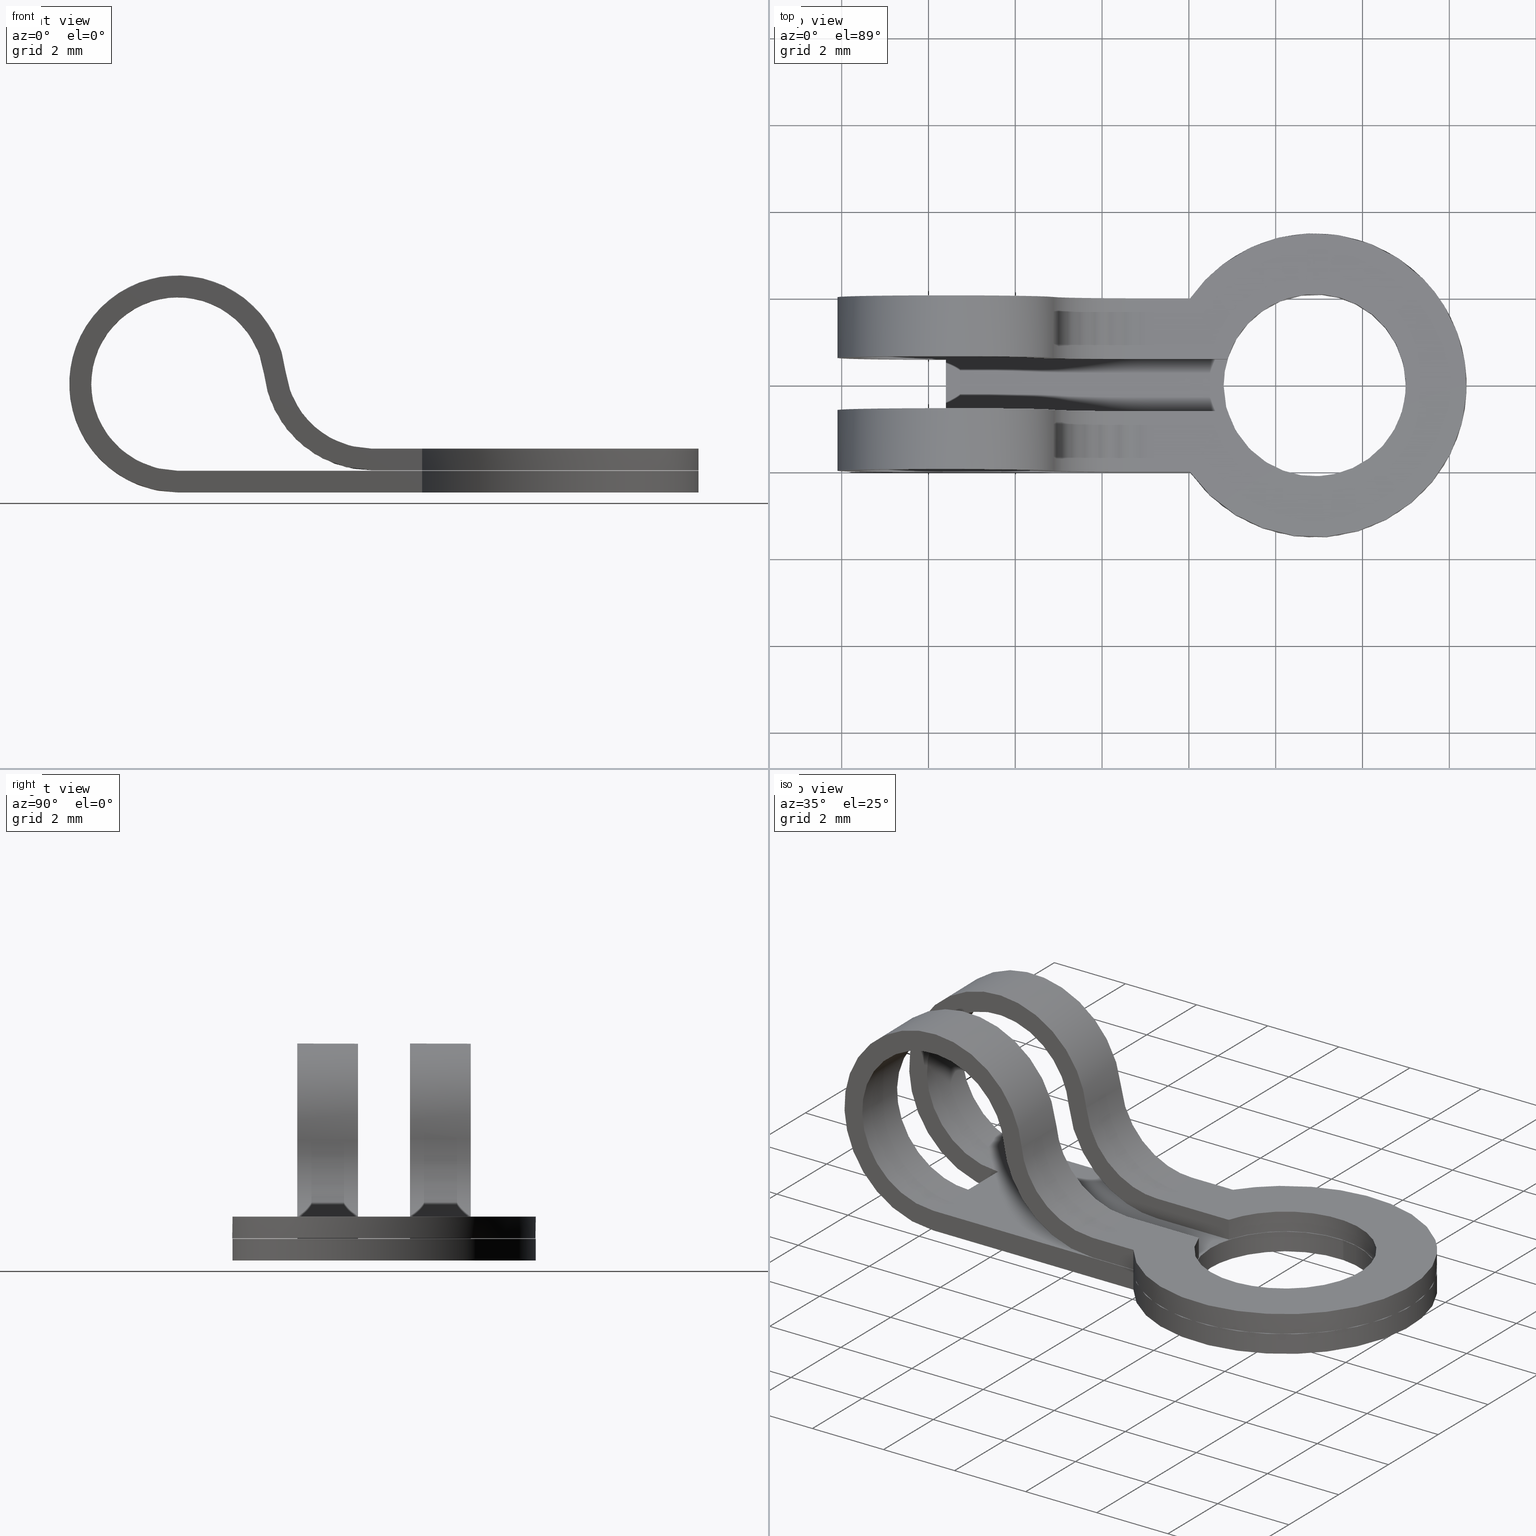
[diagram: canonical four-view strip — front | top / right | iso, engineering-drawing reading convention]
A machine part, canonical four-view strip (front | top / right | iso — engineering-drawing reading convention). The complete STEP part file that produces these views, byte-faithful:
ISO-10303-21;
HEADER;
/****************************************************************
 * Generated by software with PDE/Lib inside                    *
 * PDElib Version 4.4.1-0003, patched  Thursday August 19 11:58 *
 * International Technegroup Inc. (www.iti-oh.com)              *
 ****************************************************************/
FILE_DESCRIPTION((''),'2;1');
FILE_NAME('','2005-12-14T14:31:20',(''),(''),'','CADfix','');
FILE_SCHEMA(('AUTOMOTIVE_DESIGN'));
ENDSEC;
DATA;
#5=APPLICATION_CONTEXT('automotive design');
#6=APPLICATION_PROTOCOL_DEFINITION('Draft International Standard','automotive_design',1998,#5);
#7=PRODUCT_CONTEXT('None',#5,'mechanical');
#8=PRODUCT('terminal','','None',(#7));
#9=PRODUCT_RELATED_PRODUCT_CATEGORY('part','description',(#8));
#10=PRODUCT_DEFINITION_FORMATION('None','None',#8);
#11=PRODUCT_DEFINITION_CONTEXT('part definition',#5,'design');
#12=PRODUCT_DEFINITION('None','None',#10,#11);
#18=(NAMED_UNIT(*)PLANE_ANGLE_UNIT()SI_UNIT($,.RADIAN.));
#19=DIMENSIONAL_EXPONENTS(0.0,0.0,0.0,0.0,0.0,0.0,0.0);
#20=PLANE_ANGLE_MEASURE_WITH_UNIT(PLANE_ANGLE_MEASURE(0.017453292500000),#18);
#24=(CONVERSION_BASED_UNIT('DEGREE',#20)NAMED_UNIT(#19)PLANE_ANGLE_UNIT());
#28=(NAMED_UNIT(*)SI_UNIT($,.STERADIAN.)SOLID_ANGLE_UNIT());
#32=(LENGTH_UNIT()NAMED_UNIT(*)SI_UNIT(.MILLI.,.METRE.));
#34=UNCERTAINTY_MEASURE_WITH_UNIT(LENGTH_MEASURE(0.001000000000000),#32,'DISTANCE_ACCURACY_VALUE','');
#36=(GEOMETRIC_REPRESENTATION_CONTEXT(3)GLOBAL_UNCERTAINTY_ASSIGNED_CONTEXT((#34))GLOBAL_UNIT_ASSIGNED_CONTEXT((#24,#28,#32))REPRESENTATION_CONTEXT('None','None'));
#37=AXIS2_PLACEMENT_3D('',#38,#39,#40);
#38=CARTESIAN_POINT('',(0.0,0.0,0.0));
#39=DIRECTION('',(0.0,0.0,1.0));
#40=DIRECTION('',(1.0,0.0,0.0));
#41=ADVANCED_BREP_SHAPE_REPRESENTATION('',(#37,#1218),#36);
#42=PRODUCT_DEFINITION_SHAPE('','',#12);
#43=SHAPE_DEFINITION_REPRESENTATION(#42,#41);
#44=CARTESIAN_POINT('',(8.764673983598133,-2.095843228345329,-1.987500000000001));
#45=CARTESIAN_POINT('',(8.749997931695141,-2.094688198011118,-1.987500000000002));
#46=CARTESIAN_POINT('',(6.641709498131956,-1.928762299811092,-1.987500000000001));
#47=CARTESIAN_POINT('',(6.806473599160432,0.164764101028476,-1.987500000000001));
#48=CARTESIAN_POINT('',(6.971237700188908,2.258290501868045,-1.987500000000001));
#49=CARTESIAN_POINT('',(9.079522560904504,2.092364884857223,-1.987500000000002));
#50=CARTESIAN_POINT('',(9.094195081514092,2.091210132441827,-1.987500000000001));
#51=CARTESIAN_POINT('',(8.764673983598133,-2.095843228345329,-2.512812499999944));
#52=CARTESIAN_POINT('',(8.749997931695141,-2.094688198011118,-2.512812499999944));
#53=CARTESIAN_POINT('',(6.641709498131956,-1.928762299811092,-2.512812499999944));
#54=CARTESIAN_POINT('',(6.806473599160432,0.164764101028476,-2.512812499999944));
#55=CARTESIAN_POINT('',(6.971237700188908,2.258290501868045,-2.512812499999944));
#56=CARTESIAN_POINT('',(9.079522560904504,2.092364884857223,-2.512812499999944));
#57=CARTESIAN_POINT('',(9.094195081514092,2.091210132441827,-2.512812499999944));
#65=(BOUNDED_SURFACE()B_SPLINE_SURFACE(2,1,((#44,#51),(#45,#52),(#46,#53),(#47,#54),(#48,#55),(#49,#56),(#50,#57)),.UNSPECIFIED.,.F.,.F.,.U.)B_SPLINE_SURFACE_WITH_KNOTS((3,1,2,1,3),(2,2),(0.0,0.034798188395063,3.514192112329061,6.993586036263059,7.028375777804495),(0.0,1.0),.UNSPECIFIED.)GEOMETRIC_REPRESENTATION_ITEM()RATIONAL_B_SPLINE_SURFACE(((1.005858579758847,1.005858579758847),(1.002929289879423,1.002929289879423),(0.707106781186548,0.707106781186548),(1.0,1.0),(0.707106781186548,0.707106781186548),(1.002928578828533,1.002928578828533),(1.005857157657066,1.005857157657066)))REPRESENTATION_ITEM('')SURFACE());
#66=CARTESIAN_POINT('',(6.800000000000001,0.0,-2.499999999999945));
#67=VERTEX_POINT('',#66);
#68=CARTESIAN_POINT('',(8.735239515111395,-2.093526685429664,-2.500000000000134));
#69=VERTEX_POINT('',#68);
#70=CARTESIAN_POINT('',(6.800000000000001,0.0,-2.499999999999945));
#71=CARTESIAN_POINT('',(6.800000000000002,-1.941223395914477,-2.499999999999945));
#72=CARTESIAN_POINT('',(8.735239515111395,-2.093526685429664,-2.500000000000134));
#80=(BOUNDED_CURVE()B_SPLINE_CURVE(2,(#70,#71,#72),.UNSPECIFIED.,.F.,.U.)B_SPLINE_CURVE_WITH_KNOTS((3,3),(0.0,0.236331596733665),.UNSPECIFIED.)CURVE()GEOMETRIC_REPRESENTATION_ITEM()RATIONAL_B_SPLINE_CURVE((1.0,0.723120311701417,0.969723974112622))REPRESENTATION_ITEM(''));
#81=EDGE_CURVE('',#67,#69,#80,.T.);
#82=ORIENTED_EDGE('',*,*,#81,.F.);
#83=CARTESIAN_POINT('',(9.064760484888607,2.093526685429664,-2.500000000000134));
#84=VERTEX_POINT('',#83);
#85=CARTESIAN_POINT('',(9.064760484888607,2.093526685429664,-2.500000000000135));
#86=CARTESIAN_POINT('',(8.982507408255799,2.100000000000000,-2.499999999999945));
#87=CARTESIAN_POINT('',(8.900000000000000,2.100000000000000,-2.499999999999945));
#88=CARTESIAN_POINT('',(6.800000000000002,2.100000000000000,-2.499999999999945));
#89=CARTESIAN_POINT('',(6.800000000000001,0.0,-2.499999999999945));
#97=(BOUNDED_CURVE()B_SPLINE_CURVE(2,(#85,#86,#87,#88,#89),.UNSPECIFIED.,.F.,.U.)B_SPLINE_CURVE_WITH_KNOTS((3,2,3),(0.736331596733665,0.750000000000000,1.0),.UNSPECIFIED.)CURVE()GEOMETRIC_REPRESENTATION_ITEM()RATIONAL_B_SPLINE_CURVE((0.969723974112622,0.983986469485131,1.0,0.707106781186548,1.0))REPRESENTATION_ITEM(''));
#98=EDGE_CURVE('',#84,#67,#97,.T.);
#99=ORIENTED_EDGE('',*,*,#98,.F.);
#100=CARTESIAN_POINT('',(9.064760529551007,2.093526681914811,-2.0));
#101=VERTEX_POINT('',#100);
#102=CARTESIAN_POINT('',(9.064760529551007,2.093526681914811,-2.0));
#103=CARTESIAN_POINT('',(9.064760484888607,2.093526685429664,-2.500000000000134));
#104=QUASI_UNIFORM_CURVE('',1,(#102,#103),.UNSPECIFIED.,.F.,.U.);
#105=EDGE_CURVE('',#101,#84,#104,.T.);
#106=ORIENTED_EDGE('',*,*,#105,.F.);
#107=CARTESIAN_POINT('',(6.800000000000001,0.0,-2.0));
#108=VERTEX_POINT('',#107);
#109=CARTESIAN_POINT('',(9.064760529551007,2.093526681914811,-2.000000000000000));
#110=CARTESIAN_POINT('',(8.982507430690625,2.100000000000001,-2.000000000000000));
#111=CARTESIAN_POINT('',(8.900000000000000,2.100000000000000,-2.0));
#112=CARTESIAN_POINT('',(6.800000000000002,2.100000000000000,-2.000000000000000));
#113=CARTESIAN_POINT('',(6.800000000000001,0.0,-2.0));
#121=(BOUNDED_CURVE()B_SPLINE_CURVE(2,(#109,#110,#111,#112,#113),.UNSPECIFIED.,.F.,.U.)B_SPLINE_CURVE_WITH_KNOTS((3,2,3),(0.736331593076566,0.750000000000000,1.0),.UNSPECIFIED.)CURVE()GEOMETRIC_REPRESENTATION_ITEM()RATIONAL_B_SPLINE_CURVE((0.969723966480516,0.983986465200574,1.0,0.707106781186548,1.0))REPRESENTATION_ITEM(''));
#122=EDGE_CURVE('',#101,#108,#121,.T.);
#123=ORIENTED_EDGE('',*,*,#122,.T.);
#124=CARTESIAN_POINT('',(8.735239470448992,-2.093526681914811,-2.0));
#125=VERTEX_POINT('',#124);
#126=CARTESIAN_POINT('',(6.800000000000001,0.0,-2.0));
#127=CARTESIAN_POINT('',(6.800000000000002,-1.941223354373200,-2.0));
#128=CARTESIAN_POINT('',(8.735239470448992,-2.093526681914811,-2.000000000000000));
#136=(BOUNDED_CURVE()B_SPLINE_CURVE(2,(#126,#127,#128),.UNSPECIFIED.,.F.,.U.)B_SPLINE_CURVE_WITH_KNOTS((3,3),(0.0,0.236331593076566),.UNSPECIFIED.)CURVE()GEOMETRIC_REPRESENTATION_ITEM()RATIONAL_B_SPLINE_CURVE((1.0,0.723120315985974,0.969723966480516))REPRESENTATION_ITEM(''));
#137=EDGE_CURVE('',#108,#125,#136,.T.);
#138=ORIENTED_EDGE('',*,*,#137,.T.);
#139=CARTESIAN_POINT('',(8.735239470448992,-2.093526681914811,-2.0));
#140=CARTESIAN_POINT('',(8.735239515111395,-2.093526685429664,-2.500000000000134));
#141=QUASI_UNIFORM_CURVE('',1,(#139,#140),.UNSPECIFIED.,.F.,.U.);
#142=EDGE_CURVE('',#125,#69,#141,.T.);
#143=ORIENTED_EDGE('',*,*,#142,.T.);
#144=EDGE_LOOP('',(#82,#99,#106,#123,#138,#143));
#145=FACE_OUTER_BOUND('',#144,.T.);
#146=ADVANCED_FACE('',(#145),#65,.F.);
#147=CARTESIAN_POINT('',(9.035326016401751,2.095843228345340,-1.987500000000002));
#148=CARTESIAN_POINT('',(9.050002068304801,2.094688198011122,-1.987500000000002));
#149=CARTESIAN_POINT('',(11.158290501868045,1.928762299811092,-1.987500000000001));
#150=CARTESIAN_POINT('',(10.993526400839571,-0.164764101028476,-1.987500000000001));
#151=CARTESIAN_POINT('',(10.828762299811093,-2.258290501868045,-1.987500000000001));
#152=CARTESIAN_POINT('',(8.720477439095498,-2.092364884857223,-1.987500000000002));
#153=CARTESIAN_POINT('',(8.705804918485907,-2.091210132441828,-1.987500000000002));
#154=CARTESIAN_POINT('',(9.035326016401751,2.095843228345340,-2.512812499999945));
#155=CARTESIAN_POINT('',(9.050002068304801,2.094688198011122,-2.512812499999944));
#156=CARTESIAN_POINT('',(11.158290501868045,1.928762299811092,-2.512812499999944));
#157=CARTESIAN_POINT('',(10.993526400839571,-0.164764101028476,-2.512812499999944));
#158=CARTESIAN_POINT('',(10.828762299811093,-2.258290501868045,-2.512812499999944));
#159=CARTESIAN_POINT('',(8.720477439095498,-2.092364884857223,-2.512812499999944));
#160=CARTESIAN_POINT('',(8.705804918485907,-2.091210132441828,-2.512812499999945));
#168=(BOUNDED_SURFACE()B_SPLINE_SURFACE(2,1,((#147,#154),(#148,#155),(#149,#156),(#150,#157),(#151,#158),(#152,#159),(#153,#160)),.UNSPECIFIED.,.F.,.F.,.U.)B_SPLINE_SURFACE_WITH_KNOTS((3,1,2,1,3),(2,2),(0.0,0.034798188395203,3.514192112329202,6.993586036263201,7.028375777804640),(0.0,1.0),.UNSPECIFIED.)GEOMETRIC_REPRESENTATION_ITEM()RATIONAL_B_SPLINE_SURFACE(((1.005858579758870,1.005858579758870),(1.002929289879435,1.002929289879435),(0.707106781186548,0.707106781186548),(1.0,1.0),(0.707106781186548,0.707106781186548),(1.002928578828533,1.002928578828533),(1.005857157657066,1.005857157657066)))REPRESENTATION_ITEM('')SURFACE());
#169=CARTESIAN_POINT('',(11.0,0.0,-2.499999999999945));
#170=VERTEX_POINT('',#169);
#171=CARTESIAN_POINT('',(8.735239515111395,-2.093526685429664,-2.500000000000134));
#172=CARTESIAN_POINT('',(8.817492591744204,-2.100000000000001,-2.499999999999945));
#173=CARTESIAN_POINT('',(8.900000000000000,-2.100000000000000,-2.499999999999945));
#174=CARTESIAN_POINT('',(11.0,-2.100000000000000,-2.499999999999945));
#175=CARTESIAN_POINT('',(11.0,0.0,-2.499999999999945));
#183=(BOUNDED_CURVE()B_SPLINE_CURVE(2,(#171,#172,#173,#174,#175),.UNSPECIFIED.,.F.,.U.)B_SPLINE_CURVE_WITH_KNOTS((3,2,3),(0.236331596733665,0.250000000000000,0.500000000000000),.UNSPECIFIED.)CURVE()GEOMETRIC_REPRESENTATION_ITEM()RATIONAL_B_SPLINE_CURVE((0.969723974112622,0.983986469485131,1.0,0.707106781186548,1.0))REPRESENTATION_ITEM(''));
#184=EDGE_CURVE('',#69,#170,#183,.T.);
#185=ORIENTED_EDGE('',*,*,#184,.F.);
#186=ORIENTED_EDGE('',*,*,#142,.F.);
#187=CARTESIAN_POINT('',(11.0,0.0,-2.0));
#188=VERTEX_POINT('',#187);
#189=CARTESIAN_POINT('',(8.735239470448992,-2.093526681914810,-2.000000000000000));
#190=CARTESIAN_POINT('',(8.817492569309374,-2.100000000000000,-2.0));
#191=CARTESIAN_POINT('',(8.900000000000000,-2.100000000000000,-2.0));
#192=CARTESIAN_POINT('',(11.0,-2.100000000000000,-2.000000000000000));
#193=CARTESIAN_POINT('',(11.0,0.0,-2.0));
#201=(BOUNDED_CURVE()B_SPLINE_CURVE(2,(#189,#190,#191,#192,#193),.UNSPECIFIED.,.F.,.U.)B_SPLINE_CURVE_WITH_KNOTS((3,2,3),(0.236331593076566,0.250000000000000,0.500000000000000),.UNSPECIFIED.)CURVE()GEOMETRIC_REPRESENTATION_ITEM()RATIONAL_B_SPLINE_CURVE((0.969723966480516,0.983986465200574,1.0,0.707106781186548,1.0))REPRESENTATION_ITEM(''));
#202=EDGE_CURVE('',#125,#188,#201,.T.);
#203=ORIENTED_EDGE('',*,*,#202,.T.);
#204=CARTESIAN_POINT('',(11.0,0.0,-2.0));
#205=CARTESIAN_POINT('',(11.000000000000002,1.941223354373202,-2.000000000000000));
#206=CARTESIAN_POINT('',(9.064760529551007,2.093526681914811,-2.000000000000000));
#214=(BOUNDED_CURVE()B_SPLINE_CURVE(2,(#204,#205,#206),.UNSPECIFIED.,.F.,.U.)B_SPLINE_CURVE_WITH_KNOTS((3,3),(0.500000000000000,0.736331593076566),.UNSPECIFIED.)CURVE()GEOMETRIC_REPRESENTATION_ITEM()RATIONAL_B_SPLINE_CURVE((1.0,0.723120315985974,0.969723966480516))REPRESENTATION_ITEM(''));
#215=EDGE_CURVE('',#188,#101,#214,.T.);
#216=ORIENTED_EDGE('',*,*,#215,.T.);
#217=ORIENTED_EDGE('',*,*,#105,.T.);
#218=CARTESIAN_POINT('',(11.0,0.0,-2.499999999999945));
#219=CARTESIAN_POINT('',(11.0,1.941223395914475,-2.499999999999945));
#220=CARTESIAN_POINT('',(9.064760484888607,2.093526685429664,-2.500000000000134));
#228=(BOUNDED_CURVE()B_SPLINE_CURVE(2,(#218,#219,#220),.UNSPECIFIED.,.F.,.U.)B_SPLINE_CURVE_WITH_KNOTS((3,3),(0.500000000000000,0.736331596733665),.UNSPECIFIED.)CURVE()GEOMETRIC_REPRESENTATION_ITEM()RATIONAL_B_SPLINE_CURVE((1.0,0.723120311701417,0.969723974112622))REPRESENTATION_ITEM(''));
#229=EDGE_CURVE('',#170,#84,#228,.T.);
#230=ORIENTED_EDGE('',*,*,#229,.F.);
#231=EDGE_LOOP('',(#185,#186,#203,#216,#217,#230));
#232=FACE_OUTER_BOUND('',#231,.T.);
#233=ADVANCED_FACE('',(#232),#168,.F.);
#234=CARTESIAN_POINT('',(-2.547046747597062,0.600000000000009,2.742229161025067));
#235=CARTESIAN_POINT('',(-2.547046747597062,0.600000000000009,-2.749392330600836));
#236=CARTESIAN_POINT('',(7.336377131361049,0.600000000000009,2.742229161025067));
#237=CARTESIAN_POINT('',(7.336377131361049,0.600000000000009,-2.749392330600836));
#238=B_SPLINE_SURFACE_WITH_KNOTS('',1,1,((#234,#236),(#235,#237)),.UNSPECIFIED.,.F.,.F.,.U.,(2,2),(2,2),(0.0,5.491621491625903),(0.0,9.883423878958110),.UNSPECIFIED.);
#239=CARTESIAN_POINT('',(0.400000000000006,0.600000000000045,-2.0));
#240=VERTEX_POINT('',#239);
#241=CARTESIAN_POINT('',(0.400000000000005,0.600000000000045,-2.500000000000000));
#242=VERTEX_POINT('',#241);
#243=CARTESIAN_POINT('',(0.400000000000006,0.600000000000045,-2.0));
#244=CARTESIAN_POINT('',(0.400000000000005,0.600000000000045,-2.500000000000000));
#245=QUASI_UNIFORM_CURVE('',1,(#243,#244),.UNSPECIFIED.,.F.,.U.);
#246=EDGE_CURVE('',#240,#242,#245,.T.);
#247=ORIENTED_EDGE('',*,*,#246,.F.);
#248=CARTESIAN_POINT('',(2.387114043587395,0.600000000000045,0.226666666666668));
#249=VERTEX_POINT('',#248);
#250=CARTESIAN_POINT('',(0.400000000000006,0.600000000000045,-2.0));
#251=CARTESIAN_POINT('',(-1.525679730313454,0.600000000000045,-2.000000000000000));
#252=CARTESIAN_POINT('',(-1.598566858128569,0.600000000000045,-0.075700155812775));
#253=CARTESIAN_POINT('',(-1.671453985943684,0.600000000000045,1.848599688374450));
#254=CARTESIAN_POINT('',(0.248708177437425,0.600000000000045,1.994269486409921));
#255=CARTESIAN_POINT('',(2.168870340818534,0.600000000000045,2.139939284445393));
#256=CARTESIAN_POINT('',(2.387114043587394,0.600000000000045,0.226666666666668));
#264=(BOUNDED_CURVE()B_SPLINE_CURVE(2,(#250,#251,#252,#253,#254,#255,#256),.UNSPECIFIED.,.F.,.U.)B_SPLINE_CURVE_WITH_KNOTS((3,2,2,3),(0.0,0.333333333333333,0.666666666666667,1.0),.UNSPECIFIED.)CURVE()GEOMETRIC_REPRESENTATION_ITEM()RATIONAL_B_SPLINE_CURVE((1.0,0.720364518110931,1.0,0.720364518110931,1.0,0.720364518110931,1.0))REPRESENTATION_ITEM(''));
#265=EDGE_CURVE('',#240,#249,#264,.T.);
#266=ORIENTED_EDGE('',*,*,#265,.T.);
#267=CARTESIAN_POINT('',(4.871006598071630,0.600000000000045,-1.990000000000000));
#268=VERTEX_POINT('',#267);
#269=CARTESIAN_POINT('',(2.387114043587394,0.600000000000045,0.226666666666668));
#270=CARTESIAN_POINT('',(2.639965381469022,0.600000000000045,-1.990000000000000));
#271=CARTESIAN_POINT('',(4.871006598071630,0.600000000000045,-1.990000000000000));
#279=(BOUNDED_CURVE()B_SPLINE_CURVE(2,(#269,#270,#271),.UNSPECIFIED.,.F.,.U.)CURVE()GEOMETRIC_REPRESENTATION_ITEM()QUASI_UNIFORM_CURVE()RATIONAL_B_SPLINE_CURVE((1.0,0.746100976186646,1.0))REPRESENTATION_ITEM(''));
#280=EDGE_CURVE('',#249,#268,#279,.T.);
#281=ORIENTED_EDGE('',*,*,#280,.T.);
#282=CARTESIAN_POINT('',(6.887538820250209,0.600000000000045,-1.990000000000045));
#283=VERTEX_POINT('',#282);
#284=CARTESIAN_POINT('',(6.887538820250209,0.600000000000045,-1.990000000000045));
#285=CARTESIAN_POINT('',(4.871006598071630,0.600000000000045,-1.990000000000000));
#286=QUASI_UNIFORM_CURVE('',1,(#284,#285),.UNSPECIFIED.,.F.,.U.);
#287=EDGE_CURVE('',#283,#268,#286,.T.);
#288=ORIENTED_EDGE('',*,*,#287,.F.);
#289=CARTESIAN_POINT('',(6.887538820250209,0.600000000000045,-1.490000000000000));
#290=VERTEX_POINT('',#289);
#291=CARTESIAN_POINT('',(6.887538820250209,0.600000000000045,-1.990000000000045));
#292=CARTESIAN_POINT('',(6.887538820250209,0.600000000000045,-1.490000000000000));
#293=QUASI_UNIFORM_CURVE('',1,(#291,#292),.UNSPECIFIED.,.F.,.U.);
#294=EDGE_CURVE('',#283,#290,#293,.T.);
#295=ORIENTED_EDGE('',*,*,#294,.T.);
#296=CARTESIAN_POINT('',(4.871006598071630,0.600000000000045,-1.490000000000000));
#297=VERTEX_POINT('',#296);
#298=CARTESIAN_POINT('',(4.871006598071630,0.600000000000045,-1.490000000000000));
#299=CARTESIAN_POINT('',(6.887538820250209,0.600000000000045,-1.490000000000000));
#300=QUASI_UNIFORM_CURVE('',1,(#298,#299),.UNSPECIFIED.,.F.,.U.);
#301=EDGE_CURVE('',#297,#290,#300,.T.);
#302=ORIENTED_EDGE('',*,*,#301,.F.);
#303=CARTESIAN_POINT('',(2.883892554484240,0.600000000000045,0.283333333333334));
#304=VERTEX_POINT('',#303);
#305=CARTESIAN_POINT('',(2.883892554484242,0.600000000000045,0.283333333333334));
#306=CARTESIAN_POINT('',(3.086173624789545,0.600000000000045,-1.490000000000000));
#307=CARTESIAN_POINT('',(4.871006598071630,0.600000000000045,-1.490000000000000));
#315=(BOUNDED_CURVE()B_SPLINE_CURVE(2,(#305,#306,#307),.UNSPECIFIED.,.F.,.U.)CURVE()GEOMETRIC_REPRESENTATION_ITEM()QUASI_UNIFORM_CURVE()RATIONAL_B_SPLINE_CURVE((1.0,0.746100976186646,1.0))REPRESENTATION_ITEM(''));
#316=EDGE_CURVE('',#304,#297,#315,.T.);
#317=ORIENTED_EDGE('',*,*,#316,.F.);
#318=CARTESIAN_POINT('',(0.400000000000006,0.600000000000045,-2.500000000000000));
#319=CARTESIAN_POINT('',(-2.007099662891819,0.600000000000045,-2.500000000000000));
#320=CARTESIAN_POINT('',(-2.098208572660713,0.600000000000045,-0.094625194765969));
#321=CARTESIAN_POINT('',(-2.189317482429608,0.600000000000045,2.310749610468064));
#322=CARTESIAN_POINT('',(0.210885221796779,0.600000000000045,2.492836858012402));
#323=CARTESIAN_POINT('',(2.611087926023166,0.600000000000045,2.674924105556741));
#324=CARTESIAN_POINT('',(2.883892554484241,0.600000000000045,0.283333333333335));
#332=(BOUNDED_CURVE()B_SPLINE_CURVE(2,(#318,#319,#320,#321,#322,#323,#324),.UNSPECIFIED.,.F.,.U.)B_SPLINE_CURVE_WITH_KNOTS((3,2,2,3),(0.0,0.333333333333333,0.666666666666667,1.0),.UNSPECIFIED.)CURVE()GEOMETRIC_REPRESENTATION_ITEM()RATIONAL_B_SPLINE_CURVE((1.0,0.720364518110931,1.0,0.720364518110931,1.0,0.720364518110931,1.0))REPRESENTATION_ITEM(''));
#333=EDGE_CURVE('',#242,#304,#332,.T.);
#334=ORIENTED_EDGE('',*,*,#333,.F.);
#335=EDGE_LOOP('',(#247,#266,#281,#288,#295,#302,#317,#334));
#336=FACE_OUTER_BOUND('',#335,.T.);
#337=ADVANCED_FACE('',(#336),#238,.T.);
#338=CARTESIAN_POINT('',(0.400000000000006,-0.659940031468394,-2.524974999030903));
#339=CARTESIAN_POINT('',(0.400000000000006,-0.659940031468394,-1.975024987558052));
#340=CARTESIAN_POINT('',(0.400000000000006,0.659940031468439,-2.524974999030903));
#341=CARTESIAN_POINT('',(0.400000000000006,0.659940031468439,-1.975024987558052));
#342=B_SPLINE_SURFACE_WITH_KNOTS('',1,1,((#338,#340),(#339,#341)),.UNSPECIFIED.,.F.,.F.,.U.,(2,2),(2,2),(0.041708334948495,0.958291687403247),(0.041708311480284,0.958291688519716),.UNSPECIFIED.);
#343=CARTESIAN_POINT('',(0.400000000000006,-0.600000000000000,-2.0));
#344=VERTEX_POINT('',#343);
#345=CARTESIAN_POINT('',(0.400000000000006,-0.600000000000000,-2.0));
#346=CARTESIAN_POINT('',(0.400000000000006,0.600000000000045,-2.0));
#347=QUASI_UNIFORM_CURVE('',1,(#345,#346),.UNSPECIFIED.,.F.,.U.);
#348=EDGE_CURVE('',#344,#240,#347,.T.);
#349=ORIENTED_EDGE('',*,*,#348,.T.);
#350=ORIENTED_EDGE('',*,*,#246,.T.);
#351=CARTESIAN_POINT('',(0.400000000000006,-0.600000000000000,-2.499999999999945));
#352=VERTEX_POINT('',#351);
#353=CARTESIAN_POINT('',(0.400000000000006,-0.600000000000000,-2.499999999999945));
#354=CARTESIAN_POINT('',(0.400000000000005,0.600000000000045,-2.500000000000000));
#355=QUASI_UNIFORM_CURVE('',1,(#353,#354),.UNSPECIFIED.,.F.,.U.);
#356=EDGE_CURVE('',#352,#242,#355,.T.);
#357=ORIENTED_EDGE('',*,*,#356,.F.);
#358=CARTESIAN_POINT('',(0.400000000000006,-0.600000000000000,-2.0));
#359=CARTESIAN_POINT('',(0.400000000000006,-0.600000000000000,-2.499999999999945));
#360=QUASI_UNIFORM_CURVE('',1,(#358,#359),.UNSPECIFIED.,.F.,.U.);
#361=EDGE_CURVE('',#344,#352,#360,.T.);
#362=ORIENTED_EDGE('',*,*,#361,.F.);
#363=EDGE_LOOP('',(#349,#350,#357,#362));
#364=FACE_OUTER_BOUND('',#363,.T.);
#365=ADVANCED_FACE('',(#364),#342,.T.);
#366=CARTESIAN_POINT('',(-2.547046788403561,-0.600000000000000,-2.749392195241119));
#367=CARTESIAN_POINT('',(-2.547046788403561,-0.600000000000000,2.742229264436779));
#368=CARTESIAN_POINT('',(7.336377133302362,-0.600000000000000,-2.749392195241119));
#369=CARTESIAN_POINT('',(7.336377133302362,-0.600000000000000,2.742229264436779));
#370=B_SPLINE_SURFACE_WITH_KNOTS('',1,1,((#366,#368),(#367,#369)),.UNSPECIFIED.,.F.,.F.,.U.,(2,2),(2,2),(0.0,5.491621459677898),(0.0,9.883423921705923),.UNSPECIFIED.);
#371=ORIENTED_EDGE('',*,*,#361,.T.);
#372=CARTESIAN_POINT('',(2.883892554484240,-0.600000000000045,0.283333333333334));
#373=VERTEX_POINT('',#372);
#374=CARTESIAN_POINT('',(2.883892554484242,-0.600000000000045,0.283333333333334));
#375=CARTESIAN_POINT('',(2.611087926023168,-0.600000000000045,2.674924105556740));
#376=CARTESIAN_POINT('',(0.210885221796781,-0.600000000000045,2.492836858012402));
#377=CARTESIAN_POINT('',(-2.189317482429606,-0.600000000000045,2.310749610468064));
#378=CARTESIAN_POINT('',(-2.098208572660713,-0.600000000000045,-0.094625194765966));
#379=CARTESIAN_POINT('',(-2.007099662891821,-0.600000000000045,-2.500000000000000));
#380=CARTESIAN_POINT('',(0.400000000000006,-0.600000000000000,-2.499999999999945));
#388=(BOUNDED_CURVE()B_SPLINE_CURVE(2,(#374,#375,#376,#377,#378,#379,#380),.UNSPECIFIED.,.F.,.U.)B_SPLINE_CURVE_WITH_KNOTS((3,2,2,3),(0.0,0.333333333333333,0.666666666666667,1.0),.UNSPECIFIED.)CURVE()GEOMETRIC_REPRESENTATION_ITEM()RATIONAL_B_SPLINE_CURVE((1.0,0.720364518110931,1.0,0.720364518110931,1.0,0.720364518110931,1.0))REPRESENTATION_ITEM(''));
#389=EDGE_CURVE('',#373,#352,#388,.T.);
#390=ORIENTED_EDGE('',*,*,#389,.F.);
#391=CARTESIAN_POINT('',(4.871006598071630,-0.600000000000045,-1.490000000000000));
#392=VERTEX_POINT('',#391);
#393=CARTESIAN_POINT('',(4.871006598071630,-0.600000000000045,-1.490000000000000));
#394=CARTESIAN_POINT('',(3.086173624789544,-0.600000000000045,-1.490000000000000));
#395=CARTESIAN_POINT('',(2.883892554484242,-0.600000000000045,0.283333333333334));
#403=(BOUNDED_CURVE()B_SPLINE_CURVE(2,(#393,#394,#395),.UNSPECIFIED.,.F.,.U.)CURVE()GEOMETRIC_REPRESENTATION_ITEM()QUASI_UNIFORM_CURVE()RATIONAL_B_SPLINE_CURVE((1.0,0.746100976186646,1.0))REPRESENTATION_ITEM(''));
#404=EDGE_CURVE('',#392,#373,#403,.T.);
#405=ORIENTED_EDGE('',*,*,#404,.F.);
#406=CARTESIAN_POINT('',(6.887538820250209,-0.600000000000045,-1.490000000000000));
#407=VERTEX_POINT('',#406);
#408=CARTESIAN_POINT('',(6.887538820250209,-0.600000000000045,-1.490000000000000));
#409=CARTESIAN_POINT('',(4.871006598071630,-0.600000000000045,-1.490000000000000));
#410=QUASI_UNIFORM_CURVE('',1,(#408,#409),.UNSPECIFIED.,.F.,.U.);
#411=EDGE_CURVE('',#407,#392,#410,.T.);
#412=ORIENTED_EDGE('',*,*,#411,.F.);
#413=CARTESIAN_POINT('',(6.887538820250209,-0.600000000000045,-1.990000000000045));
#414=VERTEX_POINT('',#413);
#415=CARTESIAN_POINT('',(6.887538820250209,-0.600000000000045,-1.490000000000000));
#416=CARTESIAN_POINT('',(6.887538820250209,-0.600000000000045,-1.990000000000045));
#417=QUASI_UNIFORM_CURVE('',1,(#415,#416),.UNSPECIFIED.,.F.,.U.);
#418=EDGE_CURVE('',#407,#414,#417,.T.);
#419=ORIENTED_EDGE('',*,*,#418,.T.);
#420=CARTESIAN_POINT('',(4.871006598071630,-0.600000000000045,-1.990000000000000));
#421=VERTEX_POINT('',#420);
#422=CARTESIAN_POINT('',(4.871006598071630,-0.600000000000045,-1.990000000000000));
#423=CARTESIAN_POINT('',(6.887538820250209,-0.600000000000045,-1.990000000000045));
#424=QUASI_UNIFORM_CURVE('',1,(#422,#423),.UNSPECIFIED.,.F.,.U.);
#425=EDGE_CURVE('',#421,#414,#424,.T.);
#426=ORIENTED_EDGE('',*,*,#425,.F.);
#427=CARTESIAN_POINT('',(2.387114043587395,-0.600000000000045,0.226666666666668));
#428=VERTEX_POINT('',#427);
#429=CARTESIAN_POINT('',(4.871006598071630,-0.600000000000045,-1.990000000000000));
#430=CARTESIAN_POINT('',(2.639965381469021,-0.600000000000045,-1.990000000000000));
#431=CARTESIAN_POINT('',(2.387114043587394,-0.600000000000045,0.226666666666668));
#439=(BOUNDED_CURVE()B_SPLINE_CURVE(2,(#429,#430,#431),.UNSPECIFIED.,.F.,.U.)CURVE()GEOMETRIC_REPRESENTATION_ITEM()QUASI_UNIFORM_CURVE()RATIONAL_B_SPLINE_CURVE((1.0,0.746100976186646,1.0))REPRESENTATION_ITEM(''));
#440=EDGE_CURVE('',#421,#428,#439,.T.);
#441=ORIENTED_EDGE('',*,*,#440,.T.);
#442=CARTESIAN_POINT('',(2.387114043587394,-0.600000000000045,0.226666666666667));
#443=CARTESIAN_POINT('',(2.168870340818535,-0.600000000000045,2.139939284445391));
#444=CARTESIAN_POINT('',(0.248708177437426,-0.600000000000045,1.994269486409922));
#445=CARTESIAN_POINT('',(-1.671453985943683,-0.600000000000045,1.848599688374452));
#446=CARTESIAN_POINT('',(-1.598566858128569,-0.600000000000045,-0.075700155812773));
#447=CARTESIAN_POINT('',(-1.525679730313456,-0.600000000000045,-2.0));
#448=CARTESIAN_POINT('',(0.400000000000006,-0.600000000000000,-2.0));
#456=(BOUNDED_CURVE()B_SPLINE_CURVE(2,(#442,#443,#444,#445,#446,#447,#448),.UNSPECIFIED.,.F.,.U.)B_SPLINE_CURVE_WITH_KNOTS((3,2,2,3),(0.0,0.333333333333333,0.666666666666667,1.0),.UNSPECIFIED.)CURVE()GEOMETRIC_REPRESENTATION_ITEM()RATIONAL_B_SPLINE_CURVE((1.0,0.720364518110931,1.0,0.720364518110931,1.0,0.720364518110931,1.0))REPRESENTATION_ITEM(''));
#457=EDGE_CURVE('',#428,#344,#456,.T.);
#458=ORIENTED_EDGE('',*,*,#457,.T.);
#459=EDGE_LOOP('',(#371,#390,#405,#412,#419,#426,#441,#458));
#460=FACE_OUTER_BOUND('',#459,.T.);
#461=ADVANCED_FACE('',(#460),#370,.T.);
#462=CARTESIAN_POINT('',(6.870595630112311,-0.539923979353339,-1.477499999999999));
#463=CARTESIAN_POINT('',(6.870595630112311,-0.539923979353339,-2.002812500000046));
#464=CARTESIAN_POINT('',(7.350384024012223,-2.343297603114315,-1.477499999999999));
#465=CARTESIAN_POINT('',(7.350384024012223,-2.343297603114315,-2.002812500000046));
#466=CARTESIAN_POINT('',(9.197650565023221,-2.078798725500222,-1.477499999999999));
#467=CARTESIAN_POINT('',(9.197650565023221,-2.078798725500222,-2.002812500000046));
#468=CARTESIAN_POINT('',(11.044917106034218,-1.814299847886129,-1.477499999999999));
#469=CARTESIAN_POINT('',(11.044917106034218,-1.814299847886129,-2.002812500000046));
#470=CARTESIAN_POINT('',(10.999374515417060,0.051250795285406,-1.477499999999999));
#471=CARTESIAN_POINT('',(10.999374515417060,0.051250795285406,-2.002812500000046));
#472=CARTESIAN_POINT('',(10.953831924799895,1.916801438456940,-1.477499999999999));
#473=CARTESIAN_POINT('',(10.953831924799895,1.916801438456940,-2.002812500000046));
#474=CARTESIAN_POINT('',(9.095859468639640,2.090846495691203,-1.477499999999999));
#475=CARTESIAN_POINT('',(9.095859468639640,2.090846495691203,-2.002812500000046));
#476=CARTESIAN_POINT('',(7.237887012479384,2.264891552925466,-1.477499999999999));
#477=CARTESIAN_POINT('',(7.237887012479384,2.264891552925466,-2.002812500000046));
#478=CARTESIAN_POINT('',(6.846667109005701,0.440254515889363,-1.477499999999999));
#479=CARTESIAN_POINT('',(6.846667109005701,0.440254515889363,-2.002812500000046));
#487=(BOUNDED_SURFACE()B_SPLINE_SURFACE(1,2,((#462,#464,#466,#468,#470,#472,#474,#476,#478),(#463,#465,#467,#469,#471,#473,#475,#477,#479)),.UNSPECIFIED.,.F.,.F.,.U.)B_SPLINE_SURFACE_WITH_KNOTS((2,2),(3,2,2,2,3),(0.0,1.0),(0.0,3.192957877615587,6.385915755231173,9.578873632846760,12.771831510462350),.UNSPECIFIED.)GEOMETRIC_REPRESENTATION_ITEM()RATIONAL_B_SPLINE_SURFACE(((1.0,0.747508326862597,1.0,0.747508326862597,1.0,0.747508326862597,1.0,0.747508326862597,1.0),(1.0,0.747508326862597,1.0,0.747508326862597,1.0,0.747508326862597,1.0,0.747508326862597,1.0)))REPRESENTATION_ITEM('')SURFACE());
#488=ORIENTED_EDGE('',*,*,#294,.F.);
#489=CARTESIAN_POINT('',(6.887538820250203,0.600000000000047,-1.990000000000045));
#490=CARTESIAN_POINT('',(7.406352245028294,2.340153128164829,-1.990000000000045));
#491=CARTESIAN_POINT('',(9.203176122514147,2.078000057444005,-1.990000000000045));
#492=CARTESIAN_POINT('',(11.000000000000002,1.815846986723179,-1.990000000000045));
#493=CARTESIAN_POINT('',(11.0,0.0,-1.990000000000045));
#494=CARTESIAN_POINT('',(11.000000000000002,-1.815846986723179,-1.990000000000045));
#495=CARTESIAN_POINT('',(9.203176122514149,-2.078000057444005,-1.990000000000045));
#496=CARTESIAN_POINT('',(7.406352245028296,-2.340153128164829,-1.990000000000045));
#497=CARTESIAN_POINT('',(6.887538820250203,-0.600000000000048,-1.990000000000045));
#505=(BOUNDED_CURVE()B_SPLINE_CURVE(2,(#489,#490,#491,#492,#493,#494,#495,#496,#497),.UNSPECIFIED.,.F.,.U.)B_SPLINE_CURVE_WITH_KNOTS((3,2,2,2,3),(0.0,0.250000000000000,0.500000000000000,0.750000000000000,1.0),.UNSPECIFIED.)CURVE()GEOMETRIC_REPRESENTATION_ITEM()RATIONAL_B_SPLINE_CURVE((1.0,0.756428972921316,1.0,0.756428972921316,1.0,0.756428972921316,1.0,0.756428972921316,1.0))REPRESENTATION_ITEM(''));
#506=EDGE_CURVE('',#283,#414,#505,.T.);
#507=ORIENTED_EDGE('',*,*,#506,.T.);
#508=ORIENTED_EDGE('',*,*,#418,.F.);
#509=CARTESIAN_POINT('',(6.887538820250203,-0.600000000000047,-1.490000000000000));
#510=CARTESIAN_POINT('',(7.406352245028296,-2.340153128164829,-1.490000000000000));
#511=CARTESIAN_POINT('',(9.203176122514147,-2.078000057444005,-1.490000000000000));
#512=CARTESIAN_POINT('',(11.0,-1.815846986723179,-1.490000000000000));
#513=CARTESIAN_POINT('',(11.0,0.0,-1.490000000000000));
#514=CARTESIAN_POINT('',(11.0,1.815846986723179,-1.490000000000000));
#515=CARTESIAN_POINT('',(9.203176122514149,2.078000057444005,-1.490000000000000));
#516=CARTESIAN_POINT('',(7.406352245028296,2.340153128164831,-1.490000000000000));
#517=CARTESIAN_POINT('',(6.887538820250203,0.600000000000048,-1.490000000000000));
#525=(BOUNDED_CURVE()B_SPLINE_CURVE(2,(#509,#510,#511,#512,#513,#514,#515,#516,#517),.UNSPECIFIED.,.F.,.U.)B_SPLINE_CURVE_WITH_KNOTS((3,2,2,2,3),(0.0,0.250000000000000,0.500000000000000,0.750000000000000,1.0),.UNSPECIFIED.)CURVE()GEOMETRIC_REPRESENTATION_ITEM()RATIONAL_B_SPLINE_CURVE((1.0,0.756428972921316,1.0,0.756428972921316,1.0,0.756428972921316,1.0,0.756428972921316,1.0))REPRESENTATION_ITEM(''));
#526=EDGE_CURVE('',#407,#290,#525,.T.);
#527=ORIENTED_EDGE('',*,*,#526,.T.);
#528=EDGE_LOOP('',(#488,#507,#508,#527));
#529=FACE_OUTER_BOUND('',#528,.T.);
#530=ADVANCED_FACE('',(#529),#487,.F.);
#531=CARTESIAN_POINT('',(4.941067356083171,-0.565000000000040,-1.488772495855105));
#532=CARTESIAN_POINT('',(4.941067356083171,-2.035875000000230,-1.488772495855105));
#533=CARTESIAN_POINT('',(2.966755403161100,-0.565000000000040,-1.557975865553161));
#534=CARTESIAN_POINT('',(2.966755403161100,-2.035875000000231,-1.557975865553161));
#535=CARTESIAN_POINT('',(2.873248250652259,-0.565000000000040,0.415334349861083));
#536=CARTESIAN_POINT('',(2.873248250652259,-2.035875000000230,0.415334349861083));
#544=(BOUNDED_SURFACE()B_SPLINE_SURFACE(1,2,((#531,#533,#535),(#532,#534,#536)),.UNSPECIFIED.,.F.,.F.,.U.)B_SPLINE_SURFACE_WITH_KNOTS((2,2),(3,3),(0.0,1.0),(0.0,3.284887932756916),.UNSPECIFIED.)GEOMETRIC_REPRESENTATION_ITEM()RATIONAL_B_SPLINE_SURFACE(((1.0,0.709650426263199,0.994956890659775),(1.0,0.709650426263199,0.994956890659775)))REPRESENTATION_ITEM('')SURFACE());
#545=CARTESIAN_POINT('',(4.871006598071630,-2.000000000000225,-1.490000000000000));
#546=VERTEX_POINT('',#545);
#547=CARTESIAN_POINT('',(4.871006598071630,-0.600000000000045,-1.490000000000000));
#548=CARTESIAN_POINT('',(4.871006598071630,-2.000000000000225,-1.490000000000000));
#549=QUASI_UNIFORM_CURVE('',1,(#547,#548),.UNSPECIFIED.,.F.,.U.);
#550=EDGE_CURVE('',#392,#546,#549,.T.);
#551=ORIENTED_EDGE('',*,*,#550,.F.);
#552=ORIENTED_EDGE('',*,*,#404,.T.);
#553=CARTESIAN_POINT('',(2.883892554484240,-2.000000000000225,0.283333333333334));
#554=VERTEX_POINT('',#553);
#555=CARTESIAN_POINT('',(2.883892554484240,-0.600000000000045,0.283333333333334));
#556=CARTESIAN_POINT('',(2.883892554484240,-2.000000000000225,0.283333333333334));
#557=QUASI_UNIFORM_CURVE('',1,(#555,#556),.UNSPECIFIED.,.F.,.U.);
#558=EDGE_CURVE('',#373,#554,#557,.T.);
#559=ORIENTED_EDGE('',*,*,#558,.T.);
#560=CARTESIAN_POINT('',(4.871006598071630,-2.000000000000225,-1.490000000000000));
#561=CARTESIAN_POINT('',(3.086173624789544,-2.000000000000226,-1.490000000000000));
#562=CARTESIAN_POINT('',(2.883892554484242,-2.000000000000225,0.283333333333334));
#570=(BOUNDED_CURVE()B_SPLINE_CURVE(2,(#560,#561,#562),.UNSPECIFIED.,.F.,.U.)CURVE()GEOMETRIC_REPRESENTATION_ITEM()QUASI_UNIFORM_CURVE()RATIONAL_B_SPLINE_CURVE((1.0,0.746100976186646,1.0))REPRESENTATION_ITEM(''));
#571=EDGE_CURVE('',#546,#554,#570,.T.);
#572=ORIENTED_EDGE('',*,*,#571,.F.);
#573=EDGE_LOOP('',(#551,#552,#559,#572));
#574=FACE_OUTER_BOUND('',#573,.T.);
#575=ADVANCED_FACE('',(#574),#544,.F.);
#576=CARTESIAN_POINT('',(6.010374978143714,-1.974858788131963,-1.987500000000001));
#577=CARTESIAN_POINT('',(6.010374978143714,-1.974858788131963,-2.512812499999944));
#578=CARTESIAN_POINT('',(8.282190136733494,-5.298992121990755,-1.987500000000001));
#579=CARTESIAN_POINT('',(8.282190136733494,-5.298992121990755,-2.512812499999944));
#580=CARTESIAN_POINT('',(11.257797673064291,-2.586656168278380,-1.987500000000001));
#581=CARTESIAN_POINT('',(11.257797673064291,-2.586656168278380,-2.512812499999944));
#582=CARTESIAN_POINT('',(14.233405209395096,0.125679785433991,-1.987500000000001));
#583=CARTESIAN_POINT('',(14.233405209395096,0.125679785433991,-2.512812499999944));
#584=CARTESIAN_POINT('',(11.133340994662721,2.694844708245529,-1.987500000000001));
#585=CARTESIAN_POINT('',(11.133340994662721,2.694844708245529,-2.512812499999944));
#586=CARTESIAN_POINT('',(8.033276779930343,5.264009631057064,-1.987500000000001));
#587=CARTESIAN_POINT('',(8.033276779930343,5.264009631057064,-2.512812499999944));
#588=CARTESIAN_POINT('',(5.920560343478813,1.836556378973675,-1.987500000000001));
#589=CARTESIAN_POINT('',(5.920560343478813,1.836556378973675,-2.512812499999944));
#597=(BOUNDED_SURFACE()B_SPLINE_SURFACE(1,2,((#576,#578,#580,#582,#584,#586,#588),(#577,#579,#581,#583,#585,#587,#589)),.UNSPECIFIED.,.F.,.F.,.U.)B_SPLINE_SURFACE_WITH_KNOTS((2,2),(3,2,2,3),(0.0,1.0),(0.0,6.380167577456182,12.760335154912360,19.140502732368549),.UNSPECIFIED.)GEOMETRIC_REPRESENTATION_ITEM()RATIONAL_B_SPLINE_SURFACE(((1.0,0.656059028990507,1.0,0.656059028990507,1.0,0.656059028990507,1.0),(1.0,0.656059028990507,1.0,0.656059028990507,1.0,0.656059028990507,1.0)))REPRESENTATION_ITEM('')SURFACE());
#598=CARTESIAN_POINT('',(6.027718691425030,-2.000000000000225,-2.0));
#599=VERTEX_POINT('',#598);
#600=CARTESIAN_POINT('',(6.027718691425051,2.000000021102730,-2.0));
#601=VERTEX_POINT('',#600);
#602=CARTESIAN_POINT('',(6.027718691425030,-2.000000000000225,-2.0));
#603=CARTESIAN_POINT('',(7.496194352325744,-4.108937617553671,-2.0));
#604=CARTESIAN_POINT('',(9.948097172984022,-3.339385020626239,-2.0));
#605=CARTESIAN_POINT('',(12.399999993642302,-2.569832423698805,-2.0));
#606=CARTESIAN_POINT('',(12.400000000000000,-8.658909E-009,-2.0));
#607=CARTESIAN_POINT('',(12.400000006357699,2.569832406380988,-2.0));
#608=CARTESIAN_POINT('',(9.948097189507125,3.339385015440308,-2.0));
#609=CARTESIAN_POINT('',(7.496194372656553,4.108937624499627,-2.0));
#610=CARTESIAN_POINT('',(6.027718691425044,2.000000021102734,-2.0));
#618=(BOUNDED_CURVE()B_SPLINE_CURVE(2,(#602,#603,#604,#605,#606,#607,#608,#609,#610),.UNSPECIFIED.,.F.,.U.)B_SPLINE_CURVE_WITH_KNOTS((3,2,2,2,3),(0.0,0.250000000000000,0.500000000000000,0.750000000000000,1.0),.UNSPECIFIED.)CURVE()GEOMETRIC_REPRESENTATION_ITEM()RATIONAL_B_SPLINE_CURVE((1.0,0.806057174615652,1.0,0.806057174615652,1.0,0.806057174615652,1.0,0.806057174615652,1.0))REPRESENTATION_ITEM(''));
#619=EDGE_CURVE('',#599,#601,#618,.T.);
#620=ORIENTED_EDGE('',*,*,#619,.F.);
#621=CARTESIAN_POINT('',(6.027718691425030,-2.000000021102710,-2.499999999999945));
#622=VERTEX_POINT('',#621);
#623=CARTESIAN_POINT('',(6.027718691425030,-2.000000000000225,-2.0));
#624=CARTESIAN_POINT('',(6.027718691425030,-2.000000021102710,-2.499999999999945));
#625=QUASI_UNIFORM_CURVE('',1,(#623,#624),.UNSPECIFIED.,.F.,.U.);
#626=EDGE_CURVE('',#599,#622,#625,.T.);
#627=ORIENTED_EDGE('',*,*,#626,.T.);
#628=CARTESIAN_POINT('',(6.027718691425051,2.000000021102730,-2.499999999999945));
#629=VERTEX_POINT('',#628);
#630=CARTESIAN_POINT('',(6.027718691425028,-2.000000021102711,-2.499999999999945));
#631=CARTESIAN_POINT('',(7.496194370752670,-4.108937621765421,-2.499999999999945));
#632=CARTESIAN_POINT('',(9.948097185376328,-3.339385016736797,-2.499999999999945));
#633=CARTESIAN_POINT('',(12.400000000000002,-2.569832411708170,-2.499999999999945));
#634=CARTESIAN_POINT('',(12.400000000000000,0.0,-2.499999999999945));
#635=CARTESIAN_POINT('',(12.400000000000002,2.569832411708148,-2.499999999999945));
#636=CARTESIAN_POINT('',(9.948097185376357,3.339385016736788,-2.499999999999945));
#637=CARTESIAN_POINT('',(7.496194370752702,4.108937621765434,-2.499999999999945));
#638=CARTESIAN_POINT('',(6.027718691425044,2.000000021102734,-2.499999999999945));
#646=(BOUNDED_CURVE()B_SPLINE_CURVE(2,(#630,#631,#632,#633,#634,#635,#636,#637,#638),.UNSPECIFIED.,.F.,.U.)B_SPLINE_CURVE_WITH_KNOTS((3,2,2,2,3),(0.0,0.250000000000000,0.500000000000000,0.750000000000000,1.0),.UNSPECIFIED.)CURVE()GEOMETRIC_REPRESENTATION_ITEM()RATIONAL_B_SPLINE_CURVE((1.0,0.806057174981699,1.0,0.806057174981699,1.0,0.806057174981699,1.0,0.806057174981699,1.0))REPRESENTATION_ITEM(''));
#647=EDGE_CURVE('',#622,#629,#646,.T.);
#648=ORIENTED_EDGE('',*,*,#647,.T.);
#649=CARTESIAN_POINT('',(6.027718691425051,2.000000021102730,-2.0));
#650=CARTESIAN_POINT('',(6.027718691425051,2.000000021102730,-2.499999999999945));
#651=QUASI_UNIFORM_CURVE('',1,(#649,#650),.UNSPECIFIED.,.F.,.U.);
#652=EDGE_CURVE('',#601,#629,#651,.T.);
#653=ORIENTED_EDGE('',*,*,#652,.F.);
#654=EDGE_LOOP('',(#620,#627,#648,#653));
#655=FACE_OUTER_BOUND('',#654,.T.);
#656=ADVANCED_FACE('',(#655),#597,.T.);
#657=CARTESIAN_POINT('',(5.953066445597488,-1.888275039801290,-1.477499999999999));
#658=CARTESIAN_POINT('',(5.953066445597488,-1.888275039801290,-2.002812500000046));
#659=CARTESIAN_POINT('',(8.163952456649970,-5.338690913335957,-1.477499999999999));
#660=CARTESIAN_POINT('',(8.163952456649970,-5.338690913335957,-2.002812500000046));
#661=CARTESIAN_POINT('',(11.226029214740620,-2.615260616491812,-1.477499999999999));
#662=CARTESIAN_POINT('',(11.226029214740620,-2.615260616491812,-2.002812500000046));
#663=CARTESIAN_POINT('',(14.288105972831270,0.108169680352334,-1.477499999999999));
#664=CARTESIAN_POINT('',(14.288105972831270,0.108169680352334,-2.002812500000046));
#665=CARTESIAN_POINT('',(11.119191282650720,2.706508830764657,-1.477499999999999));
#666=CARTESIAN_POINT('',(11.119191282650720,2.706508830764657,-2.002812500000046));
#667=CARTESIAN_POINT('',(7.950276592470164,5.304847981176978,-1.477499999999999));
#668=CARTESIAN_POINT('',(7.950276592470164,5.304847981176978,-2.002812500000046));
#669=CARTESIAN_POINT('',(5.879654783012561,1.768478094357151,-1.477499999999999));
#670=CARTESIAN_POINT('',(5.879654783012561,1.768478094357151,-2.002812500000046));
#678=(BOUNDED_SURFACE()B_SPLINE_SURFACE(1,2,((#657,#659,#661,#663,#665,#667,#669),(#658,#660,#662,#664,#666,#668,#670)),.UNSPECIFIED.,.F.,.F.,.U.)B_SPLINE_SURFACE_WITH_KNOTS((2,2),(3,2,2,3),(0.0,1.0),(0.0,6.454088401982459,12.908176803964921,19.362265205947381),.UNSPECIFIED.)GEOMETRIC_REPRESENTATION_ITEM()RATIONAL_B_SPLINE_SURFACE(((1.0,0.649448048330184,1.0,0.649448048330184,1.0,0.649448048330184,1.0),(1.0,0.649448048330184,1.0,0.649448048330184,1.0,0.649448048330184,1.0)))REPRESENTATION_ITEM('')SURFACE());
#679=CARTESIAN_POINT('',(6.027718691425030,-2.000000000000225,-1.490000000000000));
#680=VERTEX_POINT('',#679);
#681=CARTESIAN_POINT('',(6.027718691425051,2.000000021102730,-1.490000000000000));
#682=VERTEX_POINT('',#681);
#683=CARTESIAN_POINT('',(6.027718691425030,-2.000000000000225,-1.490000000000000));
#684=CARTESIAN_POINT('',(7.496194352325744,-4.108937617553671,-1.490000000000001));
#685=CARTESIAN_POINT('',(9.948097172984022,-3.339385020626239,-1.490000000000000));
#686=CARTESIAN_POINT('',(12.399999993642302,-2.569832423698805,-1.490000000000001));
#687=CARTESIAN_POINT('',(12.400000000000000,-8.658909E-009,-1.490000000000000));
#688=CARTESIAN_POINT('',(12.400000006357699,2.569832406380988,-1.490000000000001));
#689=CARTESIAN_POINT('',(9.948097189507125,3.339385015440308,-1.490000000000000));
#690=CARTESIAN_POINT('',(7.496194372656553,4.108937624499627,-1.490000000000001));
#691=CARTESIAN_POINT('',(6.027718691425044,2.000000021102734,-1.490000000000000));
#699=(BOUNDED_CURVE()B_SPLINE_CURVE(2,(#683,#684,#685,#686,#687,#688,#689,#690,#691),.UNSPECIFIED.,.F.,.U.)B_SPLINE_CURVE_WITH_KNOTS((3,2,2,2,3),(0.0,0.250000000000000,0.500000000000000,0.750000000000000,1.0),.UNSPECIFIED.)CURVE()GEOMETRIC_REPRESENTATION_ITEM()RATIONAL_B_SPLINE_CURVE((1.0,0.806057174615652,1.0,0.806057174615652,1.0,0.806057174615652,1.0,0.806057174615652,1.0))REPRESENTATION_ITEM(''));
#700=EDGE_CURVE('',#680,#682,#699,.T.);
#701=ORIENTED_EDGE('',*,*,#700,.F.);
#702=CARTESIAN_POINT('',(6.027718691425030,-2.000000021102710,-1.990000000000045));
#703=VERTEX_POINT('',#702);
#704=CARTESIAN_POINT('',(6.027718691425030,-2.000000000000225,-1.490000000000000));
#705=CARTESIAN_POINT('',(6.027718691425030,-2.000000021102710,-1.990000000000045));
#706=QUASI_UNIFORM_CURVE('',1,(#704,#705),.UNSPECIFIED.,.F.,.U.);
#707=EDGE_CURVE('',#680,#703,#706,.T.);
#708=ORIENTED_EDGE('',*,*,#707,.T.);
#709=CARTESIAN_POINT('',(6.027718691425051,2.000000021102730,-1.990000000000045));
#710=VERTEX_POINT('',#709);
#711=CARTESIAN_POINT('',(6.027718691425043,2.000000021102734,-1.990000000000045));
#712=CARTESIAN_POINT('',(7.496194370752702,4.108937621765434,-1.990000000000046));
#713=CARTESIAN_POINT('',(9.948097185376359,3.339385016736788,-1.990000000000045));
#714=CARTESIAN_POINT('',(12.400000000000000,2.569832411708147,-1.990000000000046));
#715=CARTESIAN_POINT('',(12.400000000000000,0.0,-1.990000000000045));
#716=CARTESIAN_POINT('',(12.400000000000004,-2.569832411708168,-1.990000000000046));
#717=CARTESIAN_POINT('',(9.948097185376330,-3.339385016736797,-1.990000000000045));
#718=CARTESIAN_POINT('',(7.496194370752669,-4.108937621765422,-1.990000000000046));
#719=CARTESIAN_POINT('',(6.027718691425026,-2.000000021102709,-1.990000000000045));
#727=(BOUNDED_CURVE()B_SPLINE_CURVE(2,(#711,#712,#713,#714,#715,#716,#717,#718,#719),.UNSPECIFIED.,.F.,.U.)B_SPLINE_CURVE_WITH_KNOTS((3,2,2,2,3),(0.0,0.250000000000000,0.500000000000000,0.750000000000000,1.0),.UNSPECIFIED.)CURVE()GEOMETRIC_REPRESENTATION_ITEM()RATIONAL_B_SPLINE_CURVE((1.0,0.806057174981699,1.0,0.806057174981699,1.0,0.806057174981699,1.0,0.806057174981699,1.0))REPRESENTATION_ITEM(''));
#728=EDGE_CURVE('',#710,#703,#727,.T.);
#729=ORIENTED_EDGE('',*,*,#728,.F.);
#730=CARTESIAN_POINT('',(6.027718691425051,2.000000021102730,-1.490000000000000));
#731=CARTESIAN_POINT('',(6.027718691425051,2.000000021102730,-1.990000000000045));
#732=QUASI_UNIFORM_CURVE('',1,(#730,#731),.UNSPECIFIED.,.F.,.U.);
#733=EDGE_CURVE('',#682,#710,#732,.T.);
#734=ORIENTED_EDGE('',*,*,#733,.F.);
#735=EDGE_LOOP('',(#701,#708,#729,#734));
#736=FACE_OUTER_BOUND('',#735,.T.);
#737=ADVANCED_FACE('',(#736),#678,.T.);
#738=CARTESIAN_POINT('',(-2.504098710635241,-2.000000000000200,2.742229161025064));
#739=CARTESIAN_POINT('',(-2.504098710635241,-2.000000000000200,-2.749392330600779));
#740=CARTESIAN_POINT('',(6.433608355746630,-2.000000000000200,2.742229161025064));
#741=CARTESIAN_POINT('',(6.433608355746630,-2.000000000000200,-2.749392330600779));
#742=B_SPLINE_SURFACE_WITH_KNOTS('',1,1,((#738,#740),(#739,#741)),.UNSPECIFIED.,.F.,.F.,.U.,(2,2),(2,2),(0.0,5.491621491625844),(0.0,8.937707066381872),.UNSPECIFIED.);
#743=CARTESIAN_POINT('',(0.400000000000006,-2.000000000000200,-2.499999999999945));
#744=VERTEX_POINT('',#743);
#745=CARTESIAN_POINT('',(6.027718691425030,-2.000000021102710,-2.499999999999945));
#746=CARTESIAN_POINT('',(0.400000000000006,-2.000000000000200,-2.499999999999945));
#747=QUASI_UNIFORM_CURVE('',1,(#745,#746),.UNSPECIFIED.,.F.,.U.);
#748=EDGE_CURVE('',#622,#744,#747,.T.);
#749=ORIENTED_EDGE('',*,*,#748,.F.);
#750=ORIENTED_EDGE('',*,*,#626,.F.);
#751=CARTESIAN_POINT('',(0.400000000000006,-2.000000000000225,-2.0));
#752=VERTEX_POINT('',#751);
#753=CARTESIAN_POINT('',(6.027718691425030,-2.000000000000225,-2.0));
#754=CARTESIAN_POINT('',(0.400000000000006,-2.000000000000225,-2.0));
#755=QUASI_UNIFORM_CURVE('',1,(#753,#754),.UNSPECIFIED.,.F.,.U.);
#756=EDGE_CURVE('',#599,#752,#755,.T.);
#757=ORIENTED_EDGE('',*,*,#756,.T.);
#758=CARTESIAN_POINT('',(2.387114043587395,-2.000000000000225,0.226666666666668));
#759=VERTEX_POINT('',#758);
#760=CARTESIAN_POINT('',(0.400000000000006,-2.000000000000225,-2.0));
#761=CARTESIAN_POINT('',(-1.525679730313454,-2.000000000000225,-2.000000000000000));
#762=CARTESIAN_POINT('',(-1.598566858128569,-2.000000000000225,-0.075700155812775));
#763=CARTESIAN_POINT('',(-1.671453985943684,-2.000000000000225,1.848599688374450));
#764=CARTESIAN_POINT('',(0.248708177437425,-2.000000000000225,1.994269486409921));
#765=CARTESIAN_POINT('',(2.168870340818534,-2.000000000000225,2.139939284445393));
#766=CARTESIAN_POINT('',(2.387114043587394,-2.000000000000225,0.226666666666668));
#774=(BOUNDED_CURVE()B_SPLINE_CURVE(2,(#760,#761,#762,#763,#764,#765,#766),.UNSPECIFIED.,.F.,.U.)B_SPLINE_CURVE_WITH_KNOTS((3,2,2,3),(0.0,0.333333333333333,0.666666666666667,1.0),.UNSPECIFIED.)CURVE()GEOMETRIC_REPRESENTATION_ITEM()RATIONAL_B_SPLINE_CURVE((1.0,0.720364518110931,1.0,0.720364518110931,1.0,0.720364518110931,1.0))REPRESENTATION_ITEM(''));
#775=EDGE_CURVE('',#752,#759,#774,.T.);
#776=ORIENTED_EDGE('',*,*,#775,.T.);
#777=CARTESIAN_POINT('',(4.871006598071630,-2.000000000000225,-1.990000000000000));
#778=VERTEX_POINT('',#777);
#779=CARTESIAN_POINT('',(4.871006598071630,-2.000000000000225,-1.990000000000000));
#780=CARTESIAN_POINT('',(2.639965381469021,-2.000000000000226,-1.990000000000000));
#781=CARTESIAN_POINT('',(2.387114043587394,-2.000000000000225,0.226666666666668));
#789=(BOUNDED_CURVE()B_SPLINE_CURVE(2,(#779,#780,#781),.UNSPECIFIED.,.F.,.U.)CURVE()GEOMETRIC_REPRESENTATION_ITEM()QUASI_UNIFORM_CURVE()RATIONAL_B_SPLINE_CURVE((1.0,0.746100976186646,1.0))REPRESENTATION_ITEM(''));
#790=EDGE_CURVE('',#778,#759,#789,.T.);
#791=ORIENTED_EDGE('',*,*,#790,.F.);
#792=CARTESIAN_POINT('',(4.871006598071630,-2.000000000000225,-1.990000000000000));
#793=CARTESIAN_POINT('',(6.027718691425030,-2.000000021102710,-1.990000000000045));
#794=QUASI_UNIFORM_CURVE('',1,(#792,#793),.UNSPECIFIED.,.F.,.U.);
#795=EDGE_CURVE('',#778,#703,#794,.T.);
#796=ORIENTED_EDGE('',*,*,#795,.T.);
#797=ORIENTED_EDGE('',*,*,#707,.F.);
#798=CARTESIAN_POINT('',(6.027718691425030,-2.000000000000225,-1.490000000000000));
#799=CARTESIAN_POINT('',(4.871006598071630,-2.000000000000225,-1.490000000000000));
#800=QUASI_UNIFORM_CURVE('',1,(#798,#799),.UNSPECIFIED.,.F.,.U.);
#801=EDGE_CURVE('',#680,#546,#800,.T.);
#802=ORIENTED_EDGE('',*,*,#801,.T.);
#803=ORIENTED_EDGE('',*,*,#571,.T.);
#804=CARTESIAN_POINT('',(0.400000000000006,-2.000000000000200,-2.499999999999945));
#805=CARTESIAN_POINT('',(-2.007099662891819,-2.000000000000225,-2.500000000000000));
#806=CARTESIAN_POINT('',(-2.098208572660713,-2.000000000000225,-0.094625194765969));
#807=CARTESIAN_POINT('',(-2.189317482429608,-2.000000000000225,2.310749610468064));
#808=CARTESIAN_POINT('',(0.210885221796779,-2.000000000000225,2.492836858012402));
#809=CARTESIAN_POINT('',(2.611087926023166,-2.000000000000225,2.674924105556741));
#810=CARTESIAN_POINT('',(2.883892554484241,-2.000000000000225,0.283333333333335));
#818=(BOUNDED_CURVE()B_SPLINE_CURVE(2,(#804,#805,#806,#807,#808,#809,#810),.UNSPECIFIED.,.F.,.U.)B_SPLINE_CURVE_WITH_KNOTS((3,2,2,3),(0.0,0.333333333333333,0.666666666666667,1.0),.UNSPECIFIED.)CURVE()GEOMETRIC_REPRESENTATION_ITEM()RATIONAL_B_SPLINE_CURVE((1.0,0.720364518110931,1.0,0.720364518110931,1.0,0.720364518110931,1.0))REPRESENTATION_ITEM(''));
#819=EDGE_CURVE('',#744,#554,#818,.T.);
#820=ORIENTED_EDGE('',*,*,#819,.F.);
#821=EDGE_LOOP('',(#749,#750,#757,#776,#791,#796,#797,#802,#803,#820));
#822=FACE_OUTER_BOUND('',#821,.T.);
#823=ADVANCED_FACE('',(#822),#742,.T.);
#824=CARTESIAN_POINT('',(-2.504098735298853,2.0,-2.749392195241120));
#825=CARTESIAN_POINT('',(-2.504098735298853,2.0,2.742229264436779));
#826=CARTESIAN_POINT('',(6.433608356919994,2.0,-2.749392195241120));
#827=CARTESIAN_POINT('',(6.433608356919994,2.0,2.742229264436779));
#828=B_SPLINE_SURFACE_WITH_KNOTS('',1,1,((#824,#826),(#825,#827)),.UNSPECIFIED.,.F.,.F.,.U.,(2,2),(2,2),(0.0,5.491621459677899),(0.0,8.937707092218847),.UNSPECIFIED.);
#829=CARTESIAN_POINT('',(2.883892554484240,2.0,0.283333333333334));
#830=VERTEX_POINT('',#829);
#831=CARTESIAN_POINT('',(0.400000000000006,2.0,-2.499999999999945));
#832=VERTEX_POINT('',#831);
#833=CARTESIAN_POINT('',(2.883892554484242,2.0,0.283333333333334));
#834=CARTESIAN_POINT('',(2.611087926023168,1.999999999999999,2.674924105556740));
#835=CARTESIAN_POINT('',(0.210885221796781,2.0,2.492836858012402));
#836=CARTESIAN_POINT('',(-2.189317482429606,1.999999999999999,2.310749610468064));
#837=CARTESIAN_POINT('',(-2.098208572660713,2.0,-0.094625194765966));
#838=CARTESIAN_POINT('',(-2.007099662891821,1.999999999999999,-2.500000000000000));
#839=CARTESIAN_POINT('',(0.400000000000006,2.0,-2.499999999999945));
#847=(BOUNDED_CURVE()B_SPLINE_CURVE(2,(#833,#834,#835,#836,#837,#838,#839),.UNSPECIFIED.,.F.,.U.)B_SPLINE_CURVE_WITH_KNOTS((3,2,2,3),(0.0,0.333333333333333,0.666666666666667,1.0),.UNSPECIFIED.)CURVE()GEOMETRIC_REPRESENTATION_ITEM()RATIONAL_B_SPLINE_CURVE((1.0,0.720364518110931,1.0,0.720364518110931,1.0,0.720364518110931,1.0))REPRESENTATION_ITEM(''));
#848=EDGE_CURVE('',#830,#832,#847,.T.);
#849=ORIENTED_EDGE('',*,*,#848,.F.);
#850=CARTESIAN_POINT('',(4.871006598071630,2.0,-1.490000000000000));
#851=VERTEX_POINT('',#850);
#852=CARTESIAN_POINT('',(2.883892554484242,2.0,0.283333333333334));
#853=CARTESIAN_POINT('',(3.086173624789545,2.000000000000000,-1.490000000000000));
#854=CARTESIAN_POINT('',(4.871006598071630,2.0,-1.490000000000000));
#862=(BOUNDED_CURVE()B_SPLINE_CURVE(2,(#852,#853,#854),.UNSPECIFIED.,.F.,.U.)CURVE()GEOMETRIC_REPRESENTATION_ITEM()QUASI_UNIFORM_CURVE()RATIONAL_B_SPLINE_CURVE((1.0,0.746100976186646,1.0))REPRESENTATION_ITEM(''));
#863=EDGE_CURVE('',#830,#851,#862,.T.);
#864=ORIENTED_EDGE('',*,*,#863,.T.);
#865=CARTESIAN_POINT('',(4.871006598071630,2.0,-1.490000000000000));
#866=CARTESIAN_POINT('',(6.027718691425051,2.000000021102730,-1.490000000000000));
#867=QUASI_UNIFORM_CURVE('',1,(#865,#866),.UNSPECIFIED.,.F.,.U.);
#868=EDGE_CURVE('',#851,#682,#867,.T.);
#869=ORIENTED_EDGE('',*,*,#868,.T.);
#870=ORIENTED_EDGE('',*,*,#733,.T.);
#871=CARTESIAN_POINT('',(4.871006598071630,2.0,-1.990000000000000));
#872=VERTEX_POINT('',#871);
#873=CARTESIAN_POINT('',(6.027718691425051,2.000000021102730,-1.990000000000045));
#874=CARTESIAN_POINT('',(4.871006598071630,2.0,-1.990000000000000));
#875=QUASI_UNIFORM_CURVE('',1,(#873,#874),.UNSPECIFIED.,.F.,.U.);
#876=EDGE_CURVE('',#710,#872,#875,.T.);
#877=ORIENTED_EDGE('',*,*,#876,.T.);
#878=CARTESIAN_POINT('',(2.387114043587395,2.0,0.226666666666668));
#879=VERTEX_POINT('',#878);
#880=CARTESIAN_POINT('',(2.387114043587394,2.0,0.226666666666668));
#881=CARTESIAN_POINT('',(2.639965381469022,1.999999999999999,-1.990000000000000));
#882=CARTESIAN_POINT('',(4.871006598071630,2.0,-1.990000000000000));
#890=(BOUNDED_CURVE()B_SPLINE_CURVE(2,(#880,#881,#882),.UNSPECIFIED.,.F.,.U.)CURVE()GEOMETRIC_REPRESENTATION_ITEM()QUASI_UNIFORM_CURVE()RATIONAL_B_SPLINE_CURVE((1.0,0.746100976186646,1.0))REPRESENTATION_ITEM(''));
#891=EDGE_CURVE('',#879,#872,#890,.T.);
#892=ORIENTED_EDGE('',*,*,#891,.F.);
#893=CARTESIAN_POINT('',(0.400000000000006,2.0,-2.0));
#894=VERTEX_POINT('',#893);
#895=CARTESIAN_POINT('',(2.387114043587394,2.0,0.226666666666667));
#896=CARTESIAN_POINT('',(2.168870340818535,2.0,2.139939284445391));
#897=CARTESIAN_POINT('',(0.248708177437426,2.0,1.994269486409922));
#898=CARTESIAN_POINT('',(-1.671453985943683,2.0,1.848599688374452));
#899=CARTESIAN_POINT('',(-1.598566858128569,2.0,-0.075700155812773));
#900=CARTESIAN_POINT('',(-1.525679730313456,2.0,-2.0));
#901=CARTESIAN_POINT('',(0.400000000000006,2.0,-2.0));
#909=(BOUNDED_CURVE()B_SPLINE_CURVE(2,(#895,#896,#897,#898,#899,#900,#901),.UNSPECIFIED.,.F.,.U.)B_SPLINE_CURVE_WITH_KNOTS((3,2,2,3),(0.0,0.333333333333333,0.666666666666667,1.0),.UNSPECIFIED.)CURVE()GEOMETRIC_REPRESENTATION_ITEM()RATIONAL_B_SPLINE_CURVE((1.0,0.720364518110931,1.0,0.720364518110931,1.0,0.720364518110931,1.0))REPRESENTATION_ITEM(''));
#910=EDGE_CURVE('',#879,#894,#909,.T.);
#911=ORIENTED_EDGE('',*,*,#910,.T.);
#912=CARTESIAN_POINT('',(0.400000000000006,2.0,-2.0));
#913=CARTESIAN_POINT('',(6.027718691425051,2.000000021102730,-2.0));
#914=QUASI_UNIFORM_CURVE('',1,(#912,#913),.UNSPECIFIED.,.F.,.U.);
#915=EDGE_CURVE('',#894,#601,#914,.T.);
#916=ORIENTED_EDGE('',*,*,#915,.T.);
#917=ORIENTED_EDGE('',*,*,#652,.T.);
#918=CARTESIAN_POINT('',(0.400000000000006,2.0,-2.499999999999945));
#919=CARTESIAN_POINT('',(6.027718691425051,2.000000021102730,-2.499999999999945));
#920=QUASI_UNIFORM_CURVE('',1,(#918,#919),.UNSPECIFIED.,.F.,.U.);
#921=EDGE_CURVE('',#832,#629,#920,.T.);
#922=ORIENTED_EDGE('',*,*,#921,.F.);
#923=EDGE_LOOP('',(#849,#864,#869,#870,#877,#892,#911,#916,#917,#922));
#924=FACE_OUTER_BOUND('',#923,.T.);
#925=ADVANCED_FACE('',(#924),#828,.T.);
#926=CARTESIAN_POINT('',(4.958582545586056,-0.565000000000040,-1.988465619818881));
#927=CARTESIAN_POINT('',(4.958582545586056,-2.035875000000230,-1.988465619818881));
#928=CARTESIAN_POINT('',(2.490692603127913,-0.565000000000040,-2.074969831987214));
#929=CARTESIAN_POINT('',(2.490692603127913,-2.035875000000231,-2.074969831987214));
#930=CARTESIAN_POINT('',(2.373808663734821,-0.565000000000040,0.391667938647314));
#931=CARTESIAN_POINT('',(2.373808663734821,-2.035875000000230,0.391667938647314));
#939=(BOUNDED_SURFACE()B_SPLINE_SURFACE(1,2,((#926,#928,#930),(#927,#929,#931)),.UNSPECIFIED.,.F.,.F.,.U.)B_SPLINE_SURFACE_WITH_KNOTS((2,2),(3,3),(0.0,1.0),(0.0,4.106109917492200),.UNSPECIFIED.)GEOMETRIC_REPRESENTATION_ITEM()RATIONAL_B_SPLINE_SURFACE(((1.0,0.709650426154197,0.994956890873992),(1.0,0.709650426154197,0.994956890873992)))REPRESENTATION_ITEM('')SURFACE());
#940=ORIENTED_EDGE('',*,*,#440,.F.);
#941=CARTESIAN_POINT('',(4.871006598071630,-0.600000000000045,-1.990000000000000));
#942=CARTESIAN_POINT('',(4.871006598071630,-2.000000000000225,-1.990000000000000));
#943=QUASI_UNIFORM_CURVE('',1,(#941,#942),.UNSPECIFIED.,.F.,.U.);
#944=EDGE_CURVE('',#421,#778,#943,.T.);
#945=ORIENTED_EDGE('',*,*,#944,.T.);
#946=ORIENTED_EDGE('',*,*,#790,.T.);
#947=CARTESIAN_POINT('',(2.387114043587395,-0.600000000000045,0.226666666666668));
#948=CARTESIAN_POINT('',(2.387114043587395,-2.000000000000225,0.226666666666668));
#949=QUASI_UNIFORM_CURVE('',1,(#947,#948),.UNSPECIFIED.,.F.,.U.);
#950=EDGE_CURVE('',#428,#759,#949,.T.);
#951=ORIENTED_EDGE('',*,*,#950,.F.);
#952=EDGE_LOOP('',(#940,#945,#946,#951));
#953=FACE_OUTER_BOUND('',#952,.T.);
#954=ADVANCED_FACE('',(#953),#939,.T.);
#955=CARTESIAN_POINT('',(12.776072852449641,-3.844686095711001,-1.490000000000000));
#956=CARTESIAN_POINT('',(4.494933207106402,-3.844686095711001,-1.490000000000000));
#957=CARTESIAN_POINT('',(12.776072852449641,3.844685990668262,-1.490000000000000));
#958=CARTESIAN_POINT('',(4.494933207106402,3.844685990668262,-1.490000000000000));
#959=B_SPLINE_SURFACE_WITH_KNOTS('',1,1,((#955,#957),(#956,#958)),.UNSPECIFIED.,.F.,.F.,.U.,(2,2),(2,2),(0.0,8.281139645343242),(0.0,7.689372086379263),.UNSPECIFIED.);
#960=CARTESIAN_POINT('',(4.871006598071630,2.0,-1.490000000000000));
#961=CARTESIAN_POINT('',(4.871006598071630,0.600000000000045,-1.490000000000000));
#962=QUASI_UNIFORM_CURVE('',1,(#960,#961),.UNSPECIFIED.,.F.,.U.);
#963=EDGE_CURVE('',#851,#297,#962,.T.);
#964=ORIENTED_EDGE('',*,*,#963,.T.);
#965=ORIENTED_EDGE('',*,*,#301,.T.);
#966=ORIENTED_EDGE('',*,*,#526,.F.);
#967=ORIENTED_EDGE('',*,*,#411,.T.);
#968=ORIENTED_EDGE('',*,*,#550,.T.);
#969=ORIENTED_EDGE('',*,*,#801,.F.);
#970=ORIENTED_EDGE('',*,*,#700,.T.);
#971=ORIENTED_EDGE('',*,*,#868,.F.);
#972=EDGE_LOOP('',(#964,#965,#966,#967,#968,#969,#970,#971));
#973=FACE_OUTER_BOUND('',#972,.T.);
#974=ADVANCED_FACE('',(#973),#959,.F.);
#975=CARTESIAN_POINT('',(-0.199399933869238,-3.844686095493323,-2.500000000000000));
#976=CARTESIAN_POINT('',(12.999399397427430,-3.844686095493323,-2.500000000000000));
#977=CARTESIAN_POINT('',(-0.199399933869238,3.844685990789500,-2.500000000000000));
#978=CARTESIAN_POINT('',(12.999399397427430,3.844685990789500,-2.500000000000000));
#979=B_SPLINE_SURFACE_WITH_KNOTS('',1,1,((#975,#977),(#976,#978)),.UNSPECIFIED.,.F.,.F.,.U.,(2,2),(2,2),(0.0,13.198799331296669),(0.0,7.689372086282823),.UNSPECIFIED.);
#980=ORIENTED_EDGE('',*,*,#921,.T.);
#981=ORIENTED_EDGE('',*,*,#647,.F.);
#982=ORIENTED_EDGE('',*,*,#748,.T.);
#983=CARTESIAN_POINT('',(0.400000000000006,-0.600000000000000,-2.499999999999945));
#984=CARTESIAN_POINT('',(0.400000000000006,-2.000000000000200,-2.499999999999945));
#985=QUASI_UNIFORM_CURVE('',1,(#983,#984),.UNSPECIFIED.,.F.,.U.);
#986=EDGE_CURVE('',#352,#744,#985,.T.);
#987=ORIENTED_EDGE('',*,*,#986,.F.);
#988=ORIENTED_EDGE('',*,*,#356,.T.);
#989=CARTESIAN_POINT('',(0.400000000000006,2.0,-2.499999999999945));
#990=CARTESIAN_POINT('',(0.400000000000005,0.600000000000045,-2.500000000000000));
#991=QUASI_UNIFORM_CURVE('',1,(#989,#990),.UNSPECIFIED.,.F.,.U.);
#992=EDGE_CURVE('',#832,#242,#991,.T.);
#993=ORIENTED_EDGE('',*,*,#992,.F.);
#994=EDGE_LOOP('',(#980,#981,#982,#987,#988,#993));
#995=FACE_OUTER_BOUND('',#994,.T.);
#996=ORIENTED_EDGE('',*,*,#229,.T.);
#997=ORIENTED_EDGE('',*,*,#98,.T.);
#998=ORIENTED_EDGE('',*,*,#81,.T.);
#999=ORIENTED_EDGE('',*,*,#184,.T.);
#1000=EDGE_LOOP('',(#996,#997,#998,#999));
#1001=FACE_BOUND('',#1000,.T.);
#1002=ADVANCED_FACE('',(#995,#1001),#979,.F.);
#1003=CARTESIAN_POINT('',(4.494933277783206,-3.844685853292823,-1.990000000000000));
#1004=CARTESIAN_POINT('',(12.776072849087290,-3.844685853292823,-1.990000000000000));
#1005=CARTESIAN_POINT('',(4.494933277783206,3.844685957996642,-1.990000000000000));
#1006=CARTESIAN_POINT('',(12.776072849087290,3.844685957996642,-1.990000000000000));
#1007=B_SPLINE_SURFACE_WITH_KNOTS('',1,1,((#1003,#1005),(#1004,#1006)),.UNSPECIFIED.,.F.,.F.,.U.,(2,2),(2,2),(0.0,8.281139571304085),(0.0,7.689371811289465),.UNSPECIFIED.);
#1008=ORIENTED_EDGE('',*,*,#506,.F.);
#1009=ORIENTED_EDGE('',*,*,#287,.T.);
#1010=CARTESIAN_POINT('',(4.871006598071630,2.0,-1.990000000000000));
#1011=CARTESIAN_POINT('',(4.871006598071630,0.600000000000045,-1.990000000000000));
#1012=QUASI_UNIFORM_CURVE('',1,(#1010,#1011),.UNSPECIFIED.,.F.,.U.);
#1013=EDGE_CURVE('',#872,#268,#1012,.T.);
#1014=ORIENTED_EDGE('',*,*,#1013,.F.);
#1015=ORIENTED_EDGE('',*,*,#876,.F.);
#1016=ORIENTED_EDGE('',*,*,#728,.T.);
#1017=ORIENTED_EDGE('',*,*,#795,.F.);
#1018=ORIENTED_EDGE('',*,*,#944,.F.);
#1019=ORIENTED_EDGE('',*,*,#425,.T.);
#1020=EDGE_LOOP('',(#1008,#1009,#1014,#1015,#1016,#1017,#1018,#1019));
#1021=FACE_OUTER_BOUND('',#1020,.T.);
#1022=ADVANCED_FACE('',(#1021),#1007,.F.);
#1023=CARTESIAN_POINT('',(12.999399638799421,-3.844686116012900,-2.0));
#1024=CARTESIAN_POINT('',(-0.199400282529587,-3.844686116012900,-2.0));
#1025=CARTESIAN_POINT('',(12.999399638799421,3.844686003428001,-2.0));
#1026=CARTESIAN_POINT('',(-0.199400282529587,3.844686003428001,-2.0));
#1027=B_SPLINE_SURFACE_WITH_KNOTS('',1,1,((#1023,#1025),(#1024,#1026)),.UNSPECIFIED.,.F.,.F.,.U.,(2,2),(2,2),(0.0,13.198799921329011),(0.0,7.689372119440902),.UNSPECIFIED.);
#1028=CARTESIAN_POINT('',(0.400000000000006,2.0,-2.0));
#1029=CARTESIAN_POINT('',(0.400000000000006,0.600000000000045,-2.0));
#1030=QUASI_UNIFORM_CURVE('',1,(#1028,#1029),.UNSPECIFIED.,.F.,.U.);
#1031=EDGE_CURVE('',#894,#240,#1030,.T.);
#1032=ORIENTED_EDGE('',*,*,#1031,.T.);
#1033=ORIENTED_EDGE('',*,*,#348,.F.);
#1034=CARTESIAN_POINT('',(0.400000000000006,-0.600000000000000,-2.0));
#1035=CARTESIAN_POINT('',(0.400000000000006,-2.000000000000225,-2.0));
#1036=QUASI_UNIFORM_CURVE('',1,(#1034,#1035),.UNSPECIFIED.,.F.,.U.);
#1037=EDGE_CURVE('',#344,#752,#1036,.T.);
#1038=ORIENTED_EDGE('',*,*,#1037,.T.);
#1039=ORIENTED_EDGE('',*,*,#756,.F.);
#1040=ORIENTED_EDGE('',*,*,#619,.T.);
#1041=ORIENTED_EDGE('',*,*,#915,.F.);
#1042=EDGE_LOOP('',(#1032,#1033,#1038,#1039,#1040,#1041));
#1043=FACE_OUTER_BOUND('',#1042,.T.);
#1044=ORIENTED_EDGE('',*,*,#215,.F.);
#1045=ORIENTED_EDGE('',*,*,#202,.F.);
#1046=ORIENTED_EDGE('',*,*,#137,.F.);
#1047=ORIENTED_EDGE('',*,*,#122,.F.);
#1048=EDGE_LOOP('',(#1044,#1045,#1046,#1047));
#1049=FACE_BOUND('',#1048,.T.);
#1050=ADVANCED_FACE('',(#1043,#1049),#1027,.F.);
#1051=CARTESIAN_POINT('',(0.487575947514433,-0.564999999999994,-2.498465619818881));
#1052=CARTESIAN_POINT('',(0.487575947514433,-2.035875000000231,-2.498465619818881));
#1053=CARTESIAN_POINT('',(-2.010889672304447,-0.564999999999994,-2.586041567333308));
#1054=CARTESIAN_POINT('',(-2.010889672304447,-2.035875000000231,-2.586041567333308));
#1055=CARTESIAN_POINT('',(-2.098465619818875,-0.564999999999994,-0.087575947514428));
#1056=CARTESIAN_POINT('',(-2.098465619818875,-2.035875000000231,-0.087575947514428));
#1057=CARTESIAN_POINT('',(-2.186041567333304,-0.564999999999994,2.410889672304453));
#1058=CARTESIAN_POINT('',(-2.186041567333304,-2.035875000000231,2.410889672304453));
#1059=CARTESIAN_POINT('',(0.312424052485577,-0.564999999999994,2.498465619818881));
#1060=CARTESIAN_POINT('',(0.312424052485577,-2.035875000000231,2.498465619818881));
#1061=CARTESIAN_POINT('',(2.810889672304457,-0.564999999999994,2.586041567333310));
#1062=CARTESIAN_POINT('',(2.810889672304457,-2.035875000000231,2.586041567333310));
#1063=CARTESIAN_POINT('',(2.898465619818887,-0.564999999999994,0.087575947514429));
#1064=CARTESIAN_POINT('',(2.898465619818887,-2.035875000000231,0.087575947514429));
#1072=(BOUNDED_SURFACE()B_SPLINE_SURFACE(1,2,((#1051,#1053,#1055,#1057,#1059,#1061,#1063),(#1052,#1054,#1056,#1058,#1060,#1062,#1064)),.UNSPECIFIED.,.F.,.F.,.U.)B_SPLINE_SURFACE_WITH_KNOTS((2,2),(3,2,2,3),(0.0,1.0),(0.0,4.142135623730949,8.284271247461899,12.426406871192849),.UNSPECIFIED.)GEOMETRIC_REPRESENTATION_ITEM()RATIONAL_B_SPLINE_SURFACE(((1.0,0.707106781186548,1.0,0.707106781186548,1.0,0.707106781186548,1.0),(1.0,0.707106781186548,1.0,0.707106781186548,1.0,0.707106781186548,1.0)))REPRESENTATION_ITEM('')SURFACE());
#1073=ORIENTED_EDGE('',*,*,#558,.F.);
#1074=ORIENTED_EDGE('',*,*,#389,.T.);
#1075=ORIENTED_EDGE('',*,*,#986,.T.);
#1076=ORIENTED_EDGE('',*,*,#819,.T.);
#1077=EDGE_LOOP('',(#1073,#1074,#1075,#1076));
#1078=FACE_OUTER_BOUND('',#1077,.T.);
#1079=ADVANCED_FACE('',(#1078),#1072,.T.);
#1080=CARTESIAN_POINT('',(0.470060758011548,-0.564999999999994,-1.998772495855105));
#1081=CARTESIAN_POINT('',(0.470060758011548,-2.035875000000231,-1.998772495855105));
#1082=CARTESIAN_POINT('',(-1.528711737843557,-0.564999999999994,-2.068833253866648));
#1083=CARTESIAN_POINT('',(-1.528711737843557,-2.035875000000231,-2.068833253866648));
#1084=CARTESIAN_POINT('',(-1.598772495855100,-0.564999999999994,-0.070060758011543));
#1085=CARTESIAN_POINT('',(-1.598772495855100,-2.035875000000231,-0.070060758011543));
#1086=CARTESIAN_POINT('',(-1.668833253866642,-0.564999999999994,1.928711737843561));
#1087=CARTESIAN_POINT('',(-1.668833253866642,-2.035875000000231,1.928711737843561));
#1088=CARTESIAN_POINT('',(0.329939241988462,-0.564999999999994,1.998772495855105));
#1089=CARTESIAN_POINT('',(0.329939241988462,-2.035875000000231,1.998772495855105));
#1090=CARTESIAN_POINT('',(2.328711737843567,-0.564999999999994,2.068833253866648));
#1091=CARTESIAN_POINT('',(2.328711737843567,-2.035875000000231,2.068833253866648));
#1092=CARTESIAN_POINT('',(2.398772495855110,-0.564999999999994,0.070060758011543));
#1093=CARTESIAN_POINT('',(2.398772495855110,-2.035875000000231,0.070060758011543));
#1101=(BOUNDED_SURFACE()B_SPLINE_SURFACE(1,2,((#1080,#1082,#1084,#1086,#1088,#1090,#1092),(#1081,#1083,#1085,#1087,#1089,#1091,#1093)),.UNSPECIFIED.,.F.,.F.,.U.)B_SPLINE_SURFACE_WITH_KNOTS((2,2),(3,2,2,3),(0.0,1.0),(0.0,3.313708498984759,6.627416997969518,9.941125496954276),.UNSPECIFIED.)GEOMETRIC_REPRESENTATION_ITEM()RATIONAL_B_SPLINE_SURFACE(((1.0,0.707106781186548,1.0,0.707106781186548,1.0,0.707106781186548,1.0),(1.0,0.707106781186548,1.0,0.707106781186548,1.0,0.707106781186548,1.0)))REPRESENTATION_ITEM('')SURFACE());
#1102=ORIENTED_EDGE('',*,*,#457,.F.);
#1103=ORIENTED_EDGE('',*,*,#950,.T.);
#1104=ORIENTED_EDGE('',*,*,#775,.F.);
#1105=ORIENTED_EDGE('',*,*,#1037,.F.);
#1106=EDGE_LOOP('',(#1102,#1103,#1104,#1105));
#1107=FACE_OUTER_BOUND('',#1106,.T.);
#1108=ADVANCED_FACE('',(#1107),#1101,.F.);
#1109=CARTESIAN_POINT('',(4.941067356083171,2.034999999999999,-1.488772495855105));
#1110=CARTESIAN_POINT('',(4.941067356083171,0.564125000000046,-1.488772495855105));
#1111=CARTESIAN_POINT('',(2.966755403161100,2.034999999999999,-1.557975865553161));
#1112=CARTESIAN_POINT('',(2.966755403161100,0.564125000000046,-1.557975865553161));
#1113=CARTESIAN_POINT('',(2.873248250652259,2.035000000000000,0.415334349861083));
#1114=CARTESIAN_POINT('',(2.873248250652259,0.564125000000046,0.415334349861083));
#1122=(BOUNDED_SURFACE()B_SPLINE_SURFACE(1,2,((#1109,#1111,#1113),(#1110,#1112,#1114)),.UNSPECIFIED.,.F.,.F.,.U.)B_SPLINE_SURFACE_WITH_KNOTS((2,2),(3,3),(0.0,1.0),(0.0,3.284887932756916),.UNSPECIFIED.)GEOMETRIC_REPRESENTATION_ITEM()RATIONAL_B_SPLINE_SURFACE(((1.0,0.709650426263199,0.994956890659775),(1.0,0.709650426263199,0.994956890659775)))REPRESENTATION_ITEM('')SURFACE());
#1123=CARTESIAN_POINT('',(2.883892554484240,2.0,0.283333333333334));
#1124=CARTESIAN_POINT('',(2.883892554484240,0.600000000000045,0.283333333333334));
#1125=QUASI_UNIFORM_CURVE('',1,(#1123,#1124),.UNSPECIFIED.,.F.,.U.);
#1126=EDGE_CURVE('',#830,#304,#1125,.T.);
#1127=ORIENTED_EDGE('',*,*,#1126,.T.);
#1128=ORIENTED_EDGE('',*,*,#316,.T.);
#1129=ORIENTED_EDGE('',*,*,#963,.F.);
#1130=ORIENTED_EDGE('',*,*,#863,.F.);
#1131=EDGE_LOOP('',(#1127,#1128,#1129,#1130));
#1132=FACE_OUTER_BOUND('',#1131,.T.);
#1133=ADVANCED_FACE('',(#1132),#1122,.F.);
#1134=CARTESIAN_POINT('',(4.958582545586056,2.034999999999999,-1.988465619818881));
#1135=CARTESIAN_POINT('',(4.958582545586056,0.564125000000046,-1.988465619818881));
#1136=CARTESIAN_POINT('',(2.490692603127913,2.035000000000000,-2.074969831987214));
#1137=CARTESIAN_POINT('',(2.490692603127913,0.564125000000046,-2.074969831987214));
#1138=CARTESIAN_POINT('',(2.373808663734821,2.035000000000000,0.391667938647314));
#1139=CARTESIAN_POINT('',(2.373808663734821,0.564125000000046,0.391667938647314));
#1147=(BOUNDED_SURFACE()B_SPLINE_SURFACE(1,2,((#1134,#1136,#1138),(#1135,#1137,#1139)),.UNSPECIFIED.,.F.,.F.,.U.)B_SPLINE_SURFACE_WITH_KNOTS((2,2),(3,3),(0.0,1.0),(0.0,4.106109917492200),.UNSPECIFIED.)GEOMETRIC_REPRESENTATION_ITEM()RATIONAL_B_SPLINE_SURFACE(((1.0,0.709650426154197,0.994956890873992),(1.0,0.709650426154197,0.994956890873992)))REPRESENTATION_ITEM('')SURFACE());
#1148=ORIENTED_EDGE('',*,*,#280,.F.);
#1149=CARTESIAN_POINT('',(2.387114043587395,2.0,0.226666666666668));
#1150=CARTESIAN_POINT('',(2.387114043587395,0.600000000000045,0.226666666666668));
#1151=QUASI_UNIFORM_CURVE('',1,(#1149,#1150),.UNSPECIFIED.,.F.,.U.);
#1152=EDGE_CURVE('',#879,#249,#1151,.T.);
#1153=ORIENTED_EDGE('',*,*,#1152,.F.);
#1154=ORIENTED_EDGE('',*,*,#891,.T.);
#1155=ORIENTED_EDGE('',*,*,#1013,.T.);
#1156=EDGE_LOOP('',(#1148,#1153,#1154,#1155));
#1157=FACE_OUTER_BOUND('',#1156,.T.);
#1158=ADVANCED_FACE('',(#1157),#1147,.T.);
#1159=CARTESIAN_POINT('',(0.465442370769692,2.034999999999999,-2.499143312438892));
#1160=CARTESIAN_POINT('',(0.465442370769692,0.564125000000046,-2.499143312438892));
#1161=CARTESIAN_POINT('',(-2.004789959910825,2.034999999999998,-2.563828622507765));
#1162=CARTESIAN_POINT('',(-2.004789959910825,0.564125000000046,-2.563828622507765));
#1163=CARTESIAN_POINT('',(-2.098212701060604,2.034999999999999,-0.094516137560981));
#1164=CARTESIAN_POINT('',(-2.098212701060604,0.564125000000046,-0.094516137560981));
#1165=CARTESIAN_POINT('',(-2.191635442210384,2.034999999999998,2.374796347385804));
#1166=CARTESIAN_POINT('',(-2.191635442210384,0.564125000000046,2.374796347385804));
#1167=CARTESIAN_POINT('',(0.276422891619787,2.034999999999999,2.496943871672805));
#1168=CARTESIAN_POINT('',(0.276422891619787,0.564125000000046,2.496943871672805));
#1169=CARTESIAN_POINT('',(2.744481225449958,2.034999999999998,2.619091395959807));
#1170=CARTESIAN_POINT('',(2.744481225449958,0.564125000000046,2.619091395959807));
#1171=CARTESIAN_POINT('',(2.895336996054671,2.034999999999999,0.152621348837146));
#1172=CARTESIAN_POINT('',(2.895336996054671,0.564125000000046,0.152621348837146));
#1180=(BOUNDED_SURFACE()B_SPLINE_SURFACE(1,2,((#1159,#1161,#1163,#1165,#1167,#1169,#1171),(#1160,#1162,#1164,#1166,#1168,#1170,#1172)),.UNSPECIFIED.,.F.,.F.,.U.)B_SPLINE_SURFACE_WITH_KNOTS((2,2),(3,2,2,3),(0.0,1.0),(0.0,4.108096867466469,8.216193734932938,12.324290602399410),.UNSPECIFIED.)GEOMETRIC_REPRESENTATION_ITEM()RATIONAL_B_SPLINE_SURFACE(((1.0,0.711208572010137,1.0,0.711208572010137,1.0,0.711208572010137,1.0),(1.0,0.711208572010137,1.0,0.711208572010137,1.0,0.711208572010137,1.0)))REPRESENTATION_ITEM('')SURFACE());
#1181=ORIENTED_EDGE('',*,*,#333,.T.);
#1182=ORIENTED_EDGE('',*,*,#1126,.F.);
#1183=ORIENTED_EDGE('',*,*,#848,.T.);
#1184=ORIENTED_EDGE('',*,*,#992,.T.);
#1185=EDGE_LOOP('',(#1181,#1182,#1183,#1184));
#1186=FACE_OUTER_BOUND('',#1185,.T.);
#1187=ADVANCED_FACE('',(#1186),#1180,.T.);
#1188=CARTESIAN_POINT('',(0.470060758011548,2.034999999999999,-1.998772495855105));
#1189=CARTESIAN_POINT('',(0.470060758011548,0.564125000000046,-1.998772495855105));
#1190=CARTESIAN_POINT('',(-1.528711737843557,2.034999999999998,-2.068833253866648));
#1191=CARTESIAN_POINT('',(-1.528711737843557,0.564125000000046,-2.068833253866648));
#1192=CARTESIAN_POINT('',(-1.598772495855100,2.034999999999999,-0.070060758011543));
#1193=CARTESIAN_POINT('',(-1.598772495855100,0.564125000000046,-0.070060758011543));
#1194=CARTESIAN_POINT('',(-1.668833253866642,2.034999999999998,1.928711737843561));
#1195=CARTESIAN_POINT('',(-1.668833253866642,0.564125000000046,1.928711737843561));
#1196=CARTESIAN_POINT('',(0.329939241988462,2.034999999999999,1.998772495855105));
#1197=CARTESIAN_POINT('',(0.329939241988462,0.564125000000046,1.998772495855105));
#1198=CARTESIAN_POINT('',(2.328711737843567,2.034999999999998,2.068833253866648));
#1199=CARTESIAN_POINT('',(2.328711737843567,0.564125000000046,2.068833253866648));
#1200=CARTESIAN_POINT('',(2.398772495855110,2.034999999999999,0.070060758011543));
#1201=CARTESIAN_POINT('',(2.398772495855110,0.564125000000046,0.070060758011543));
#1209=(BOUNDED_SURFACE()B_SPLINE_SURFACE(1,2,((#1188,#1190,#1192,#1194,#1196,#1198,#1200),(#1189,#1191,#1193,#1195,#1197,#1199,#1201)),.UNSPECIFIED.,.F.,.F.,.U.)B_SPLINE_SURFACE_WITH_KNOTS((2,2),(3,2,2,3),(0.0,1.0),(0.0,3.313708498984759,6.627416997969518,9.941125496954276),.UNSPECIFIED.)GEOMETRIC_REPRESENTATION_ITEM()RATIONAL_B_SPLINE_SURFACE(((1.0,0.707106781186548,1.0,0.707106781186548,1.0,0.707106781186548,1.0),(1.0,0.707106781186548,1.0,0.707106781186548,1.0,0.707106781186548,1.0)))REPRESENTATION_ITEM('')SURFACE());
#1210=ORIENTED_EDGE('',*,*,#1152,.T.);
#1211=ORIENTED_EDGE('',*,*,#265,.F.);
#1212=ORIENTED_EDGE('',*,*,#1031,.F.);
#1213=ORIENTED_EDGE('',*,*,#910,.F.);
#1214=EDGE_LOOP('',(#1210,#1211,#1212,#1213));
#1215=FACE_OUTER_BOUND('',#1214,.T.);
#1216=ADVANCED_FACE('',(#1215),#1209,.F.);
#1217=CLOSED_SHELL('',(#146,#233,#337,#365,#461,#530,#575,#656,#737,#823,#925,#954,#974,#1002,#1022,#1050,#1079,#1108,#1133,#1158,#1187,#1216));
#1218=MANIFOLD_SOLID_BREP('terminal',#1217);
#1224=(NAMED_UNIT(*)PLANE_ANGLE_UNIT()SI_UNIT($,.RADIAN.));
#1225=DIMENSIONAL_EXPONENTS(0.0,0.0,0.0,0.0,0.0,0.0,0.0);
#1226=PLANE_ANGLE_MEASURE_WITH_UNIT(PLANE_ANGLE_MEASURE(0.017453292500000),#1224);
#1230=(CONVERSION_BASED_UNIT('DEGREE',#1226)NAMED_UNIT(#1225)PLANE_ANGLE_UNIT());
#1234=(NAMED_UNIT(*)SI_UNIT($,.STERADIAN.)SOLID_ANGLE_UNIT());
#1238=(LENGTH_UNIT()NAMED_UNIT(*)SI_UNIT(.MILLI.,.METRE.));
#1240=UNCERTAINTY_MEASURE_WITH_UNIT(LENGTH_MEASURE(0.001000000000000),#1238,'DISTANCE_ACCURACY_VALUE','');
#1242=(GEOMETRIC_REPRESENTATION_CONTEXT(3)GLOBAL_UNCERTAINTY_ASSIGNED_CONTEXT((#1240))GLOBAL_UNIT_ASSIGNED_CONTEXT((#1230,#1234,#1238))REPRESENTATION_CONTEXT('','3D'));
ENDSEC;
END-ISO-10303-21;
